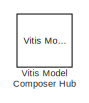
[diagram: root canvas - part 1/2, top left region]
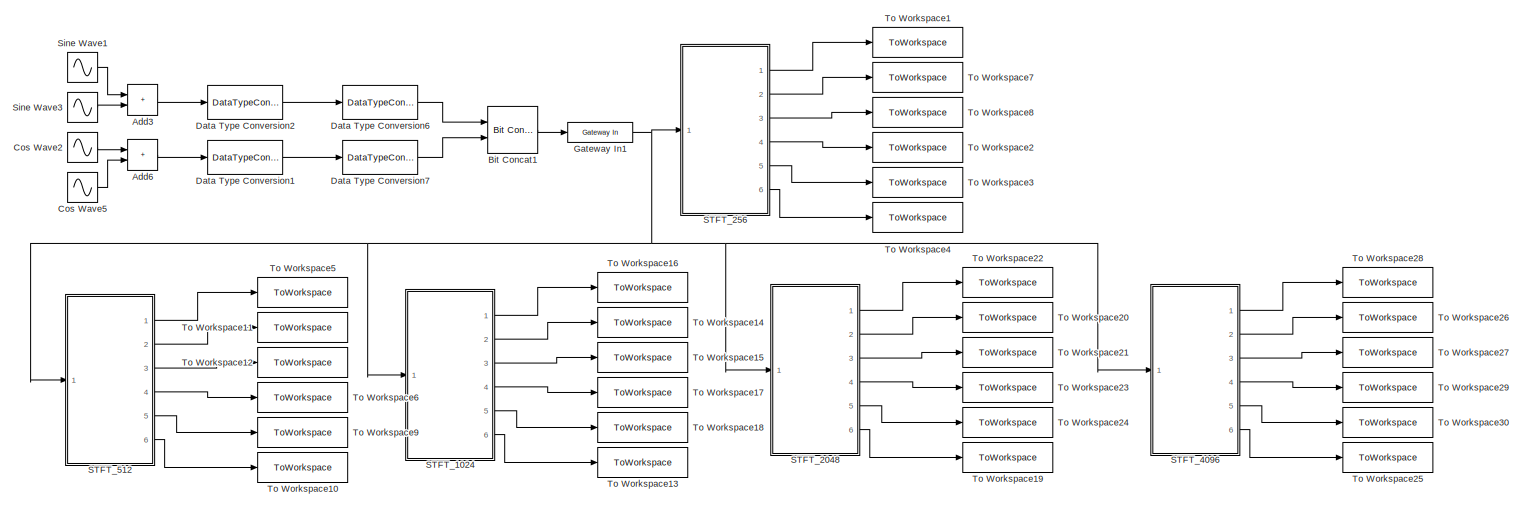
[diagram: root canvas - part 2/2, full width, bottom band]
MODEL slx_c2503fe6d909
KIND model
CONFIG AbsTol = auto
CONFIG EnableMultiTasking = off
CONFIG FixedStep = auto
CONFIG InitFcn = f = 12.288e6;\nfs = 153.6e6;\nN1 = 256;\nN2 = 512;\nN3 = 1024;\nN4 = 2048;\nN5 = 4096;\nn1 = 0:N1-1;\nn2 = 0:N2-1;\nn3 = 0:N3-1;\nn4 = 0:N4-1;\nn5 = 0:N5-1;\nHamming1 = 0.54 - 0.46 * cos(2*pi*n1/N1);\nHamming2 = 0.54 - 0.46 * cos(2*pi*n2/N2);\nHamming3 = 0.54 - 0.46 * cos(2*pi*n3/N3);\nHamming4 = 0.54 - 0.46 * cos(2*pi*n4/N4);\nHamming5 = 0.54 - 0.46 * cos(2*pi*n5/N5);\nHanning1 = 0.5 * (1 + cos(2*pi*n1/N1));\nHann...<+425ch>
CONFIG MaxStep = auto
CONFIG MinStep = auto
CONFIG RelTol = 1e-3
CONFIG SampleTimeConstraint = Unconstrained
CONFIG SolverName = VariableStepAuto
CONFIG StartTime = 0.0
CONFIG StopTime = 2048*15/fs
BLOCK [Sum] Add3
  IconShape = rectangular
  Ports = [2, 1]
BLOCK [Sum] Add6
  IconShape = rectangular
  Ports = [2, 1]
BLOCK [Reference] Bit Concat1  REF=hdlsllib/Logic and Bit
Operations/Bit Concat
  Ports = [2, 1]
  SourceBlock = hdlsllib/Logic and Bit\nOperations/Bit Concat
  SourceProductBaseCode = SL
  SourceType = Bit Concat
BLOCK [Sin] Cos Wave2
  Frequency = f*2*pi
  Phase = pi/2
  Ports = [0, 1]
  SampleTime = 1/fs
BLOCK [Sin] Cos Wave5
  Frequency = f*pi
  Phase = pi/2
  Ports = [0, 1]
  SampleTime = 1/fs
BLOCK [DataTypeConversion] Data Type Conversion1
  OutDataTypeStr = fixdt(1,16,14)
  RndMeth = Floor
BLOCK [DataTypeConversion] Data Type Conversion2
  OutDataTypeStr = fixdt(1,16,14)
  RndMeth = Floor
BLOCK [DataTypeConversion] Data Type Conversion6
  ConvertRealWorld = Stored Integer (SI)
  OutDataTypeStr = uint16
  RndMeth = Floor
  SaturateOnIntegerOverflow = off
BLOCK [DataTypeConversion] Data Type Conversion7
  ConvertRealWorld = Stored Integer (SI)
  OutDataTypeStr = uint16
  RndMeth = Floor
  SaturateOnIntegerOverflow = off
BLOCK [Reference] Gateway In1  REF=hdlBasic/Gateway In
  Ports = [1, 1]
  SourceBlock = hdlBasic/Gateway In
  SourceType = Gateway In Block
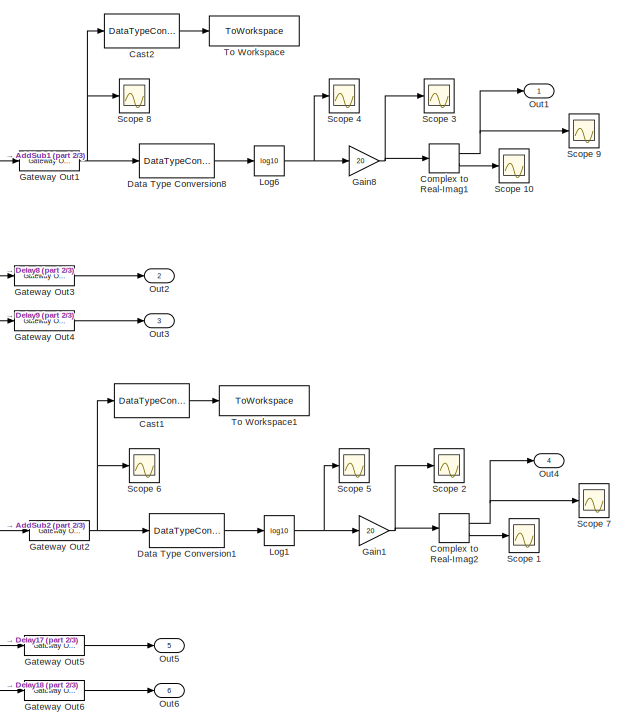
[diagram: STFT_1024 - part 1/3, right side, full height]
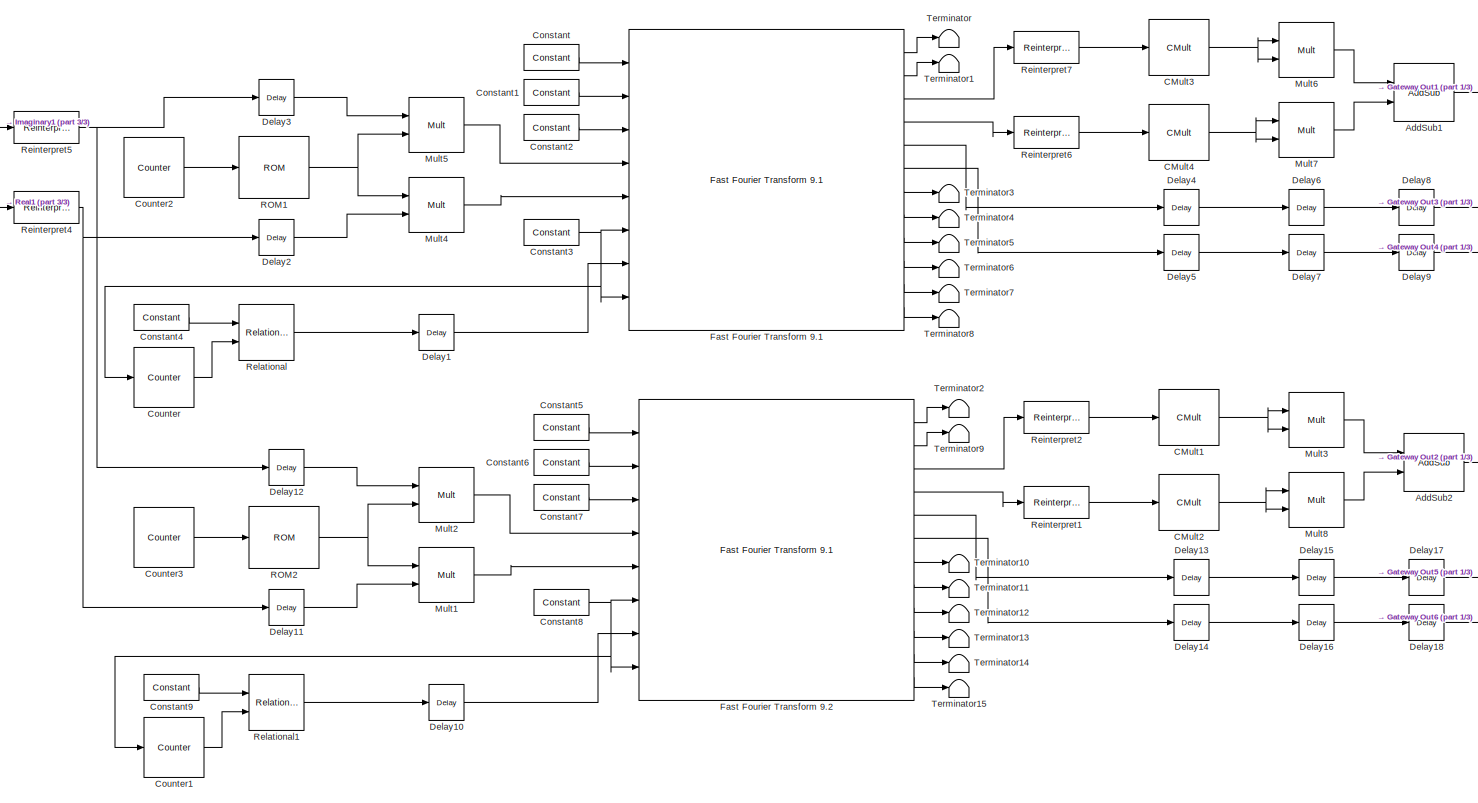
[diagram: STFT_1024 - part 2/3, center side, full height]
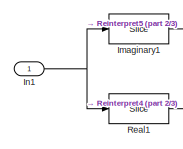
[diagram: STFT_1024 - part 3/3, top left region]
BLOCK [SubSystem] STFT_1024
  Ports = [1, 6]
  RequestExecContextInheritance = off
BLOCK [Reference] STFT_1024/AddSub1  REF=hdlBasic/AddSub
  Ports = [2, 1]
  SourceBlock = hdlBasic/AddSub
  SourceType = Adder/Subtracter Block
BLOCK [Reference] STFT_1024/AddSub2  REF=hdlBasic/AddSub
  Ports = [2, 1]
  SourceBlock = hdlBasic/AddSub
  SourceType = Adder/Subtracter Block
BLOCK [Reference] STFT_1024/CMult1  REF=hdlBasic/CMult
  Commented = through
  Ports = [1, 1]
  SourceBlock = hdlBasic/CMult
  SourceType = Constant Multiplier Block
BLOCK [Reference] STFT_1024/CMult2  REF=hdlBasic/CMult
  Commented = through
  Ports = [1, 1]
  SourceBlock = hdlBasic/CMult
  SourceType = Constant Multiplier Block
BLOCK [Reference] STFT_1024/CMult3  REF=hdlBasic/CMult
  Commented = through
  Ports = [1, 1]
  SourceBlock = hdlBasic/CMult
  SourceType = Constant Multiplier Block
BLOCK [Reference] STFT_1024/CMult4  REF=hdlBasic/CMult
  Commented = through
  Ports = [1, 1]
  SourceBlock = hdlBasic/CMult
  SourceType = Constant Multiplier Block
BLOCK [DataTypeConversion] STFT_1024/Cast1
  Commented = on
  OutDataTypeStr = double
  RndMeth = Floor
  SaturateOnIntegerOverflow = off
BLOCK [DataTypeConversion] STFT_1024/Cast2
  Commented = on
  OutDataTypeStr = double
  RndMeth = Floor
  SaturateOnIntegerOverflow = off
BLOCK [ComplexToRealImag] STFT_1024/Complex to Real-Imag1
  Ports = [1, 2]
BLOCK [ComplexToRealImag] STFT_1024/Complex to Real-Imag2
  Ports = [1, 2]
BLOCK [Reference] STFT_1024/Constant  REF=hdlBasic/Constant
  Ports = [0, 1]
  SourceBlock = hdlBasic/Constant
  SourceType = Constant Block Block
BLOCK [Reference] STFT_1024/Constant1  REF=hdlBasic/Constant
  Ports = [0, 1]
  SourceBlock = hdlBasic/Constant
  SourceType = Constant Block Block
BLOCK [Reference] STFT_1024/Constant2  REF=hdlBasic/Constant
  Ports = [0, 1]
  SourceBlock = hdlBasic/Constant
  SourceType = Constant Block Block
BLOCK [Reference] STFT_1024/Constant3  REF=hdlBasic/Constant
  Ports = [0, 1]
  SourceBlock = hdlBasic/Constant
  SourceType = Constant Block Block
BLOCK [Reference] STFT_1024/Constant4  REF=hdlBasic/Constant
  Ports = [0, 1]
  SourceBlock = hdlBasic/Constant
  SourceType = Constant Block Block
BLOCK [Reference] STFT_1024/Constant5  REF=hdlBasic/Constant
  Ports = [0, 1]
  SourceBlock = hdlBasic/Constant
  SourceType = Constant Block Block
BLOCK [Reference] STFT_1024/Constant6  REF=hdlBasic/Constant
  Ports = [0, 1]
  SourceBlock = hdlBasic/Constant
  SourceType = Constant Block Block
BLOCK [Reference] STFT_1024/Constant7  REF=hdlBasic/Constant
  Ports = [0, 1]
  SourceBlock = hdlBasic/Constant
  SourceType = Constant Block Block
BLOCK [Reference] STFT_1024/Constant8  REF=hdlBasic/Constant
  Ports = [0, 1]
  SourceBlock = hdlBasic/Constant
  SourceType = Constant Block Block
BLOCK [Reference] STFT_1024/Constant9  REF=hdlBasic/Constant
  Ports = [0, 1]
  SourceBlock = hdlBasic/Constant
  SourceType = Constant Block Block
BLOCK [Reference] STFT_1024/Counter  REF=hdlBasic/Counter
  Ports = [1, 1]
  SourceBlock = hdlBasic/Counter
  SourceType = Counter Block
BLOCK [Reference] STFT_1024/Counter1  REF=hdlBasic/Counter
  Ports = [1, 1]
  SourceBlock = hdlBasic/Counter
  SourceType = Counter Block
BLOCK [Reference] STFT_1024/Counter2  REF=hdlBasic/Counter
  Ports = [0, 1]
  SourceBlock = hdlBasic/Counter
  SourceType = Counter Block
BLOCK [Reference] STFT_1024/Counter3  REF=hdlBasic/Counter
  Ports = [0, 1]
  SourceBlock = hdlBasic/Counter
  SourceType = Counter Block
BLOCK [DataTypeConversion] STFT_1024/Data Type Conversion1
  OutDataTypeStr = double
  RndMeth = Floor
BLOCK [DataTypeConversion] STFT_1024/Data Type Conversion8
  OutDataTypeStr = double
  RndMeth = Floor
BLOCK [Reference] STFT_1024/Delay1  REF=hdlBasic/Delay
  Ports = [1, 1]
  SourceBlock = hdlBasic/Delay
  SourceType = Delay Block
BLOCK [Reference] STFT_1024/Delay10  REF=hdlBasic/Delay
  Ports = [1, 1]
  SourceBlock = hdlBasic/Delay
  SourceType = Delay Block
BLOCK [Reference] STFT_1024/Delay11  REF=hdlBasic/Delay
  Ports = [1, 1]
  SourceBlock = hdlBasic/Delay
  SourceType = Delay Block
BLOCK [Reference] STFT_1024/Delay12  REF=hdlBasic/Delay
  NameLocation = top
  Ports = [1, 1]
  SourceBlock = hdlBasic/Delay
  SourceType = Delay Block
BLOCK [Reference] STFT_1024/Delay13  REF=hdlBasic/Delay
  Commented = through
  Ports = [1, 1]
  SourceBlock = hdlBasic/Delay
  SourceType = Delay Block
BLOCK [Reference] STFT_1024/Delay14  REF=hdlBasic/Delay
  Commented = through
  Ports = [1, 1]
  SourceBlock = hdlBasic/Delay
  SourceType = Delay Block
BLOCK [Reference] STFT_1024/Delay15  REF=hdlBasic/Delay
  Ports = [1, 1]
  SourceBlock = hdlBasic/Delay
  SourceType = Delay Block
BLOCK [Reference] STFT_1024/Delay16  REF=hdlBasic/Delay
  Ports = [1, 1]
  SourceBlock = hdlBasic/Delay
  SourceType = Delay Block
BLOCK [Reference] STFT_1024/Delay17  REF=hdlBasic/Delay
  Ports = [1, 1]
  SourceBlock = hdlBasic/Delay
  SourceType = Delay Block
BLOCK [Reference] STFT_1024/Delay18  REF=hdlBasic/Delay
  Ports = [1, 1]
  SourceBlock = hdlBasic/Delay
  SourceType = Delay Block
BLOCK [Reference] STFT_1024/Delay2  REF=hdlBasic/Delay
  Ports = [1, 1]
  SourceBlock = hdlBasic/Delay
  SourceType = Delay Block
BLOCK [Reference] STFT_1024/Delay3  REF=hdlBasic/Delay
  NameLocation = top
  Ports = [1, 1]
  SourceBlock = hdlBasic/Delay
  SourceType = Delay Block
BLOCK [Reference] STFT_1024/Delay4  REF=hdlBasic/Delay
  Commented = through
  Ports = [1, 1]
  SourceBlock = hdlBasic/Delay
  SourceType = Delay Block
BLOCK [Reference] STFT_1024/Delay5  REF=hdlBasic/Delay
  Commented = through
  Ports = [1, 1]
  SourceBlock = hdlBasic/Delay
  SourceType = Delay Block
BLOCK [Reference] STFT_1024/Delay6  REF=hdlBasic/Delay
  Ports = [1, 1]
  SourceBlock = hdlBasic/Delay
  SourceType = Delay Block
BLOCK [Reference] STFT_1024/Delay7  REF=hdlBasic/Delay
  Ports = [1, 1]
  SourceBlock = hdlBasic/Delay
  SourceType = Delay Block
BLOCK [Reference] STFT_1024/Delay8  REF=hdlBasic/Delay
  Ports = [1, 1]
  SourceBlock = hdlBasic/Delay
  SourceType = Delay Block
BLOCK [Reference] STFT_1024/Delay9  REF=hdlBasic/Delay
  Ports = [1, 1]
  SourceBlock = hdlBasic/Delay
  SourceType = Delay Block
BLOCK [Reference] STFT_1024/Fast Fourier Transform 9.1  REF=hdlDSPIP/Fast Fourier Transform 9.1 
  Ports = [8, 12]
  SourceBlock = hdlDSPIP/Fast Fourier Transform 9.1
  SourceType = Fast Fourier Transform 9.1  Block
BLOCK [Reference] STFT_1024/Fast Fourier Transform 9.2  REF=hdlDSPIP/Fast Fourier Transform 9.1 
  Ports = [8, 12]
  SourceBlock = hdlDSPIP/Fast Fourier Transform 9.1
  SourceType = Fast Fourier Transform 9.1  Block
BLOCK [Gain] STFT_1024/Gain1
  Gain = 20
BLOCK [Gain] STFT_1024/Gain8
  Gain = 20
BLOCK [Reference] STFT_1024/Gateway Out1  REF=hdlBasic/Gateway Out
  Ports = [1, 1]
  SourceBlock = hdlBasic/Gateway Out
  SourceType = Gateway Out Block
BLOCK [Reference] STFT_1024/Gateway Out2  REF=hdlBasic/Gateway Out
  Ports = [1, 1]
  SourceBlock = hdlBasic/Gateway Out
  SourceType = Gateway Out Block
BLOCK [Reference] STFT_1024/Gateway Out3  REF=hdlBasic/Gateway Out
  Ports = [1, 1]
  SourceBlock = hdlBasic/Gateway Out
  SourceType = Gateway Out Block
BLOCK [Reference] STFT_1024/Gateway Out4  REF=hdlBasic/Gateway Out
  Ports = [1, 1]
  SourceBlock = hdlBasic/Gateway Out
  SourceType = Gateway Out Block
BLOCK [Reference] STFT_1024/Gateway Out5  REF=hdlBasic/Gateway Out
  Ports = [1, 1]
  SourceBlock = hdlBasic/Gateway Out
  SourceType = Gateway Out Block
BLOCK [Reference] STFT_1024/Gateway Out6  REF=hdlBasic/Gateway Out
  Ports = [1, 1]
  SourceBlock = hdlBasic/Gateway Out
  SourceType = Gateway Out Block
BLOCK [Reference] STFT_1024/Imaginary1  REF=hdlBasic/Slice
  Ports = [1, 1]
  SourceBlock = hdlBasic/Slice
  SourceType = Bit Slice Extractor Block
BLOCK [Inport] STFT_1024/In1
BLOCK [Math] STFT_1024/Log1
  Operator = log10
  OutputSignalType = complex
  Ports = [1, 1]
BLOCK [Math] STFT_1024/Log6
  Operator = log10
  OutputSignalType = complex
  Ports = [1, 1]
BLOCK [Reference] STFT_1024/Mult1  REF=hdlBasic/Mult
  Ports = [2, 1]
  SourceBlock = hdlBasic/Mult
  SourceType = Multiplier Block
BLOCK [Reference] STFT_1024/Mult2  REF=hdlBasic/Mult
  Ports = [2, 1]
  SourceBlock = hdlBasic/Mult
  SourceType = Multiplier Block
BLOCK [Reference] STFT_1024/Mult3  REF=hdlBasic/Mult
  Ports = [2, 1]
  SourceBlock = hdlBasic/Mult
  SourceType = Multiplier Block
BLOCK [Reference] STFT_1024/Mult4  REF=hdlBasic/Mult
  Ports = [2, 1]
  SourceBlock = hdlBasic/Mult
  SourceType = Multiplier Block
BLOCK [Reference] STFT_1024/Mult5  REF=hdlBasic/Mult
  Ports = [2, 1]
  SourceBlock = hdlBasic/Mult
  SourceType = Multiplier Block
BLOCK [Reference] STFT_1024/Mult6  REF=hdlBasic/Mult
  Ports = [2, 1]
  SourceBlock = hdlBasic/Mult
  SourceType = Multiplier Block
BLOCK [Reference] STFT_1024/Mult7  REF=hdlBasic/Mult
  Ports = [2, 1]
  SourceBlock = hdlBasic/Mult
  SourceType = Multiplier Block
BLOCK [Reference] STFT_1024/Mult8  REF=hdlBasic/Mult
  Ports = [2, 1]
  SourceBlock = hdlBasic/Mult
  SourceType = Multiplier Block
BLOCK [Outport] STFT_1024/Out1
BLOCK [Outport] STFT_1024/Out2
  Port = 2
BLOCK [Outport] STFT_1024/Out3
  Port = 3
BLOCK [Outport] STFT_1024/Out4
  Port = 4
BLOCK [Outport] STFT_1024/Out5
  Port = 5
BLOCK [Outport] STFT_1024/Out6
  Port = 6
BLOCK [Reference] STFT_1024/ROM1  REF=hdlBasic/ROM
  Ports = [1, 1]
  SourceBlock = hdlBasic/ROM
  SourceType = Single Port Read-Only Memory Block
BLOCK [Reference] STFT_1024/ROM2  REF=hdlBasic/ROM
  Ports = [1, 1]
  SourceBlock = hdlBasic/ROM
  SourceType = Single Port Read-Only Memory Block
BLOCK [Reference] STFT_1024/Real1  REF=hdlBasic/Slice
  Ports = [1, 1]
  SourceBlock = hdlBasic/Slice
  SourceType = Bit Slice Extractor Block
BLOCK [Reference] STFT_1024/Reinterpret1  REF=hdlBasic/Reinterpret
  Ports = [1, 1]
  SourceBlock = hdlBasic/Reinterpret
  SourceType = Type Reinterpreter Block
BLOCK [Reference] STFT_1024/Reinterpret2  REF=hdlBasic/Reinterpret
  Ports = [1, 1]
  SourceBlock = hdlBasic/Reinterpret
  SourceType = Type Reinterpreter Block
BLOCK [Reference] STFT_1024/Reinterpret4  REF=hdlBasic/Reinterpret
  Ports = [1, 1]
  SourceBlock = hdlBasic/Reinterpret
  SourceType = Type Reinterpreter Block
BLOCK [Reference] STFT_1024/Reinterpret5  REF=hdlBasic/Reinterpret
  Ports = [1, 1]
  SourceBlock = hdlBasic/Reinterpret
  SourceType = Type Reinterpreter Block
BLOCK [Reference] STFT_1024/Reinterpret6  REF=hdlBasic/Reinterpret
  Ports = [1, 1]
  SourceBlock = hdlBasic/Reinterpret
  SourceType = Type Reinterpreter Block
BLOCK [Reference] STFT_1024/Reinterpret7  REF=hdlBasic/Reinterpret
  Ports = [1, 1]
  SourceBlock = hdlBasic/Reinterpret
  SourceType = Type Reinterpreter Block
BLOCK [Reference] STFT_1024/Relational  REF=hdlBasic/Relational
  Ports = [2, 1]
  SourceBlock = hdlBasic/Relational
  SourceType = Arithmetic Relational Operator Block
BLOCK [Reference] STFT_1024/Relational1  REF=hdlBasic/Relational
  Ports = [2, 1]
  SourceBlock = hdlBasic/Relational
  SourceType = Arithmetic Relational Operator Block
BLOCK [Scope] STFT_1024/Scope 1
  Commented = on
  Floating = off
  NumInputPorts = 1
  Ports = [1]
  ScopeSpecificationString = Simulink.scopes.TimeScopeBlockCfg('CurrentConfiguration', extmgr.ConfigurationSet(extmgr.Configuration('Core','General UI',true),extmgr.Configuration('Core','Source UI',true),extmgr.Configuration('Sources','WiredSimulink',true,'DataLoggingVariableName','ScopeData4'),extmgr.Configuration('Visuals','Time Domain',true,'SerializedDisplays',{struct('MinYLimReal','-1.00000','MaxYLimReal','1.00000','YLab...<+1624ch>  <repeated x10 — deduplicated; at blocks: Scope 1, Scope 10>
BLOCK [Scope] STFT_1024/Scope 10
  Commented = on
  Floating = off
  NumInputPorts = 1
  Ports = [1]
BLOCK [Scope] STFT_1024/Scope 2
  Commented = on
  Floating = off
  NumInputPorts = 1
  Ports = [1]
  ScopeSpecificationString = Simulink.scopes.TimeScopeBlockCfg('CurrentConfiguration', extmgr.ConfigurationSet(extmgr.Configuration('Core','General UI',true),extmgr.Configuration('Core','Source UI',true),extmgr.Configuration('Sources','WiredSimulink',true,'DataLoggingVariableName','ScopeData6'),extmgr.Configuration('Visuals','Time Domain',true,'SerializedDisplays',{struct('MinYLimReal','-203.19525','MaxYLimReal','22.57725','Y...<+1637ch>  <repeated x10 — deduplicated; at blocks: Scope 2, Scope 3>
BLOCK [Scope] STFT_1024/Scope 3
  Commented = on
  Floating = off
  NumInputPorts = 1
  Ports = [1]
BLOCK [Scope] STFT_1024/Scope 4
  Commented = on
  Floating = off
  NumInputPorts = 1
  Ports = [1]
  ScopeSpecificationString = Simulink.scopes.TimeScopeBlockCfg('CurrentConfiguration', extmgr.ConfigurationSet(extmgr.Configuration('Core','General UI',true),extmgr.Configuration('Core','Source UI',true),extmgr.Configuration('Sources','WiredSimulink',true,'DataLoggingVariableName','ScopeData1'),extmgr.Configuration('Visuals','Time Domain',true,'SerializedDisplays',{struct('MinYLimReal','-10.15976','MaxYLimReal','1.12886','YLa...<+1628ch>  <repeated x10 — deduplicated; at blocks: Scope 4, Scope 5>
BLOCK [Scope] STFT_1024/Scope 5
  Commented = on
  Floating = off
  NumInputPorts = 1
  Ports = [1]
BLOCK [Scope] STFT_1024/Scope 6
  Commented = on
  Floating = off
  NumInputPorts = 1
  Ports = [1]
  ScopeSpecificationString = Simulink.scopes.TimeScopeBlockCfg('CurrentConfiguration', extmgr.ConfigurationSet(extmgr.Configuration('Core','General UI',true),extmgr.Configuration('Core','Source UI',true),extmgr.Configuration('Sources','WiredSimulink',true),extmgr.Configuration('Visuals','Time Domain',true,'SerializedDisplays',{struct('MinYLimReal','-0.00000002','MaxYLimReal','0.00000019','YLabelReal','','MinYLimMag','0.000000...<+1478ch>  <repeated x10 — deduplicated; at blocks: Scope 6, Scope 8>
BLOCK [Scope] STFT_1024/Scope 7
  Commented = on
  Floating = off
  NumInputPorts = 1
  Ports = [1]
  ScopeSpecificationString = Simulink.scopes.TimeScopeBlockCfg('CurrentConfiguration', extmgr.ConfigurationSet(extmgr.Configuration('Core','General UI',true),extmgr.Configuration('Core','Source UI',true),extmgr.Configuration('Sources','WiredSimulink',true,'DataLoggingVariableName','ScopeData3'),extmgr.Configuration('Visuals','Time Domain',true,'SerializedDisplays',{struct('MinYLimReal','-201.4793','MaxYLimReal','7.13376','YLa...<+1631ch>  <repeated x10 — deduplicated; at blocks: Scope 7, Scope 9>
BLOCK [Scope] STFT_1024/Scope 8
  Commented = on
  Floating = off
  NumInputPorts = 1
  Ports = [1]
BLOCK [Scope] STFT_1024/Scope 9
  Commented = on
  Floating = off
  NumInputPorts = 1
  Ports = [1]
BLOCK [Terminator] STFT_1024/Terminator
BLOCK [Terminator] STFT_1024/Terminator1
BLOCK [Terminator] STFT_1024/Terminator10
BLOCK [Terminator] STFT_1024/Terminator11
BLOCK [Terminator] STFT_1024/Terminator12
BLOCK [Terminator] STFT_1024/Terminator13
BLOCK [Terminator] STFT_1024/Terminator14
BLOCK [Terminator] STFT_1024/Terminator15
BLOCK [Terminator] STFT_1024/Terminator2
BLOCK [Terminator] STFT_1024/Terminator3
BLOCK [Terminator] STFT_1024/Terminator4
BLOCK [Terminator] STFT_1024/Terminator5
BLOCK [Terminator] STFT_1024/Terminator6
BLOCK [Terminator] STFT_1024/Terminator7
BLOCK [Terminator] STFT_1024/Terminator8
BLOCK [Terminator] STFT_1024/Terminator9
BLOCK [ToWorkspace] STFT_1024/To Workspace
  Commented = on
  FixptAsFi = on
  MaxDataPoints = inf
  Ports = [1]
  SampleTime = -1
  Save2DSignal = 2-D array (concatenate along first dimension)
  VariableName = FFT_out_abs_ham
BLOCK [ToWorkspace] STFT_1024/To Workspace1
  Commented = on
  FixptAsFi = on
  MaxDataPoints = inf
  Ports = [1]
  SampleTime = -1
  Save2DSignal = 2-D array (concatenate along first dimension)
  VariableName = FFT_out_abs_han
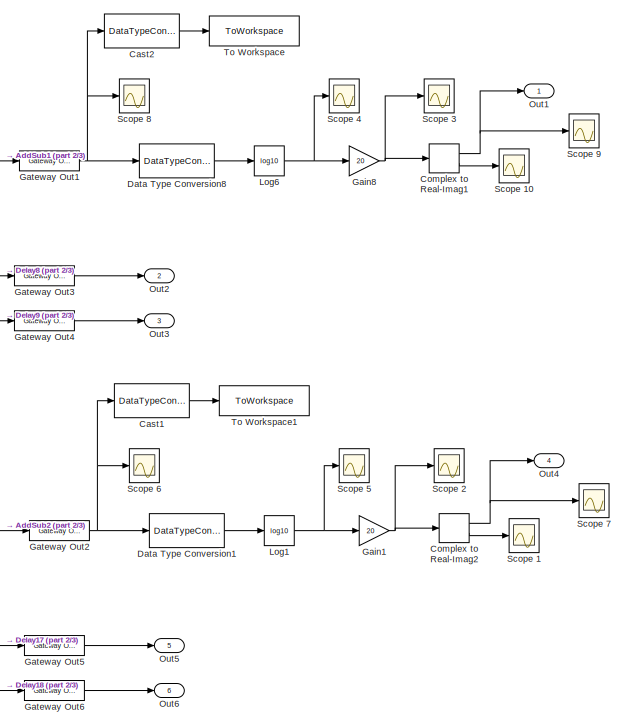
[diagram: STFT_2048 - part 1/3, right side, full height]
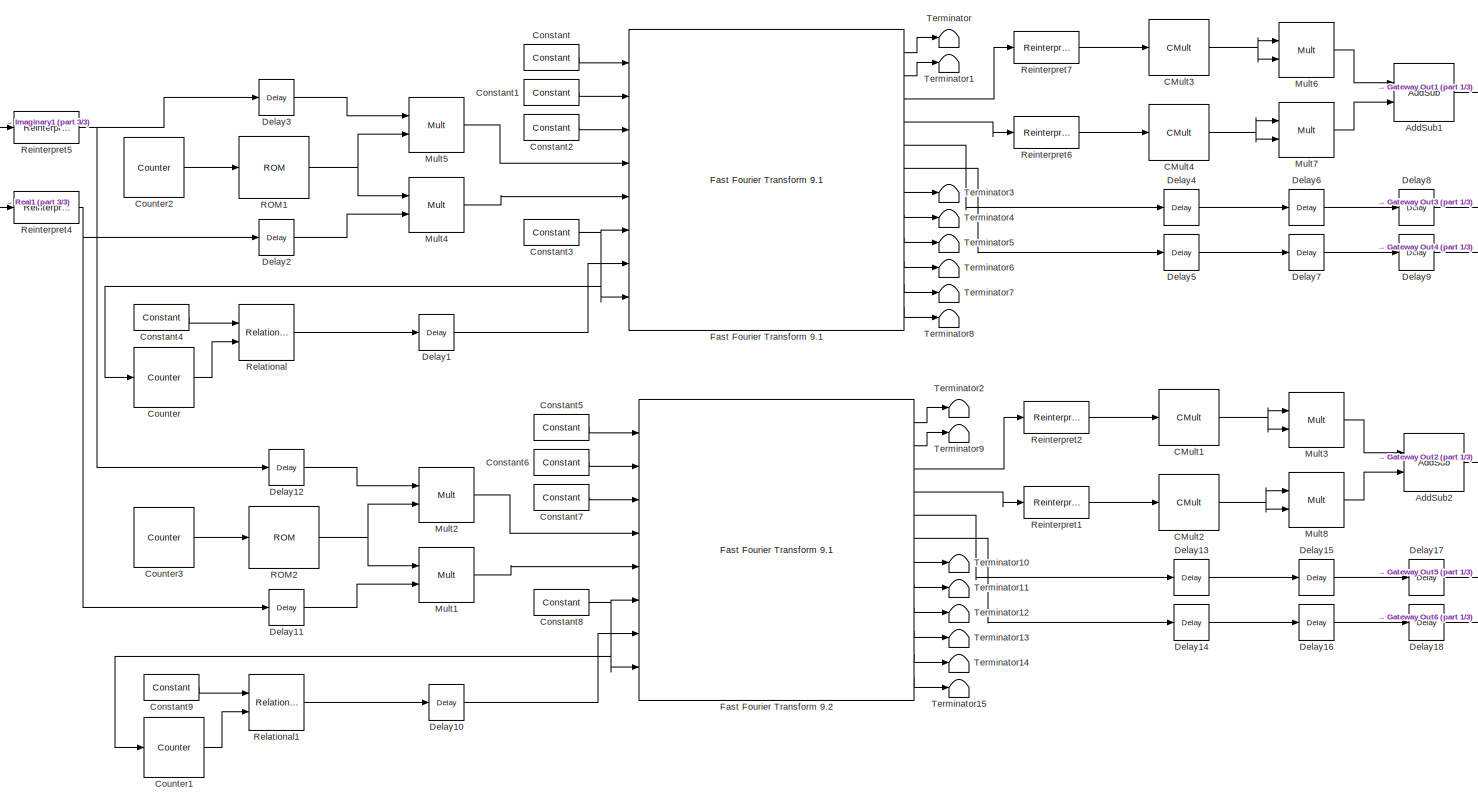
[diagram: STFT_2048 - part 2/3, center side, full height]
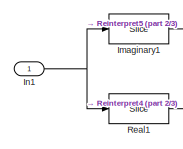
[diagram: STFT_2048 - part 3/3, top left region]
BLOCK [SubSystem] STFT_2048
  Ports = [1, 6]
  RequestExecContextInheritance = off
BLOCK [Reference] STFT_2048/AddSub1  REF=hdlBasic/AddSub
  Ports = [2, 1]
  SourceBlock = hdlBasic/AddSub
  SourceType = Adder/Subtracter Block
BLOCK [Reference] STFT_2048/AddSub2  REF=hdlBasic/AddSub
  Ports = [2, 1]
  SourceBlock = hdlBasic/AddSub
  SourceType = Adder/Subtracter Block
BLOCK [Reference] STFT_2048/CMult1  REF=hdlBasic/CMult
  Commented = through
  Ports = [1, 1]
  SourceBlock = hdlBasic/CMult
  SourceType = Constant Multiplier Block
BLOCK [Reference] STFT_2048/CMult2  REF=hdlBasic/CMult
  Commented = through
  Ports = [1, 1]
  SourceBlock = hdlBasic/CMult
  SourceType = Constant Multiplier Block
BLOCK [Reference] STFT_2048/CMult3  REF=hdlBasic/CMult
  Commented = through
  Ports = [1, 1]
  SourceBlock = hdlBasic/CMult
  SourceType = Constant Multiplier Block
BLOCK [Reference] STFT_2048/CMult4  REF=hdlBasic/CMult
  Commented = through
  Ports = [1, 1]
  SourceBlock = hdlBasic/CMult
  SourceType = Constant Multiplier Block
BLOCK [DataTypeConversion] STFT_2048/Cast1
  Commented = on
  OutDataTypeStr = double
  RndMeth = Floor
  SaturateOnIntegerOverflow = off
BLOCK [DataTypeConversion] STFT_2048/Cast2
  Commented = on
  OutDataTypeStr = double
  RndMeth = Floor
  SaturateOnIntegerOverflow = off
BLOCK [ComplexToRealImag] STFT_2048/Complex to Real-Imag1
  Ports = [1, 2]
BLOCK [ComplexToRealImag] STFT_2048/Complex to Real-Imag2
  Ports = [1, 2]
BLOCK [Reference] STFT_2048/Constant  REF=hdlBasic/Constant
  Ports = [0, 1]
  SourceBlock = hdlBasic/Constant
  SourceType = Constant Block Block
BLOCK [Reference] STFT_2048/Constant1  REF=hdlBasic/Constant
  Ports = [0, 1]
  SourceBlock = hdlBasic/Constant
  SourceType = Constant Block Block
BLOCK [Reference] STFT_2048/Constant2  REF=hdlBasic/Constant
  Ports = [0, 1]
  SourceBlock = hdlBasic/Constant
  SourceType = Constant Block Block
BLOCK [Reference] STFT_2048/Constant3  REF=hdlBasic/Constant
  Ports = [0, 1]
  SourceBlock = hdlBasic/Constant
  SourceType = Constant Block Block
BLOCK [Reference] STFT_2048/Constant4  REF=hdlBasic/Constant
  Ports = [0, 1]
  SourceBlock = hdlBasic/Constant
  SourceType = Constant Block Block
BLOCK [Reference] STFT_2048/Constant5  REF=hdlBasic/Constant
  Ports = [0, 1]
  SourceBlock = hdlBasic/Constant
  SourceType = Constant Block Block
BLOCK [Reference] STFT_2048/Constant6  REF=hdlBasic/Constant
  Ports = [0, 1]
  SourceBlock = hdlBasic/Constant
  SourceType = Constant Block Block
BLOCK [Reference] STFT_2048/Constant7  REF=hdlBasic/Constant
  Ports = [0, 1]
  SourceBlock = hdlBasic/Constant
  SourceType = Constant Block Block
BLOCK [Reference] STFT_2048/Constant8  REF=hdlBasic/Constant
  Ports = [0, 1]
  SourceBlock = hdlBasic/Constant
  SourceType = Constant Block Block
BLOCK [Reference] STFT_2048/Constant9  REF=hdlBasic/Constant
  Ports = [0, 1]
  SourceBlock = hdlBasic/Constant
  SourceType = Constant Block Block
BLOCK [Reference] STFT_2048/Counter  REF=hdlBasic/Counter
  Ports = [1, 1]
  SourceBlock = hdlBasic/Counter
  SourceType = Counter Block
BLOCK [Reference] STFT_2048/Counter1  REF=hdlBasic/Counter
  Ports = [1, 1]
  SourceBlock = hdlBasic/Counter
  SourceType = Counter Block
BLOCK [Reference] STFT_2048/Counter2  REF=hdlBasic/Counter
  Ports = [0, 1]
  SourceBlock = hdlBasic/Counter
  SourceType = Counter Block
BLOCK [Reference] STFT_2048/Counter3  REF=hdlBasic/Counter
  Ports = [0, 1]
  SourceBlock = hdlBasic/Counter
  SourceType = Counter Block
BLOCK [DataTypeConversion] STFT_2048/Data Type Conversion1
  OutDataTypeStr = double
  RndMeth = Floor
BLOCK [DataTypeConversion] STFT_2048/Data Type Conversion8
  OutDataTypeStr = double
  RndMeth = Floor
BLOCK [Reference] STFT_2048/Delay1  REF=hdlBasic/Delay
  Ports = [1, 1]
  SourceBlock = hdlBasic/Delay
  SourceType = Delay Block
BLOCK [Reference] STFT_2048/Delay10  REF=hdlBasic/Delay
  Ports = [1, 1]
  SourceBlock = hdlBasic/Delay
  SourceType = Delay Block
BLOCK [Reference] STFT_2048/Delay11  REF=hdlBasic/Delay
  Ports = [1, 1]
  SourceBlock = hdlBasic/Delay
  SourceType = Delay Block
BLOCK [Reference] STFT_2048/Delay12  REF=hdlBasic/Delay
  NameLocation = top
  Ports = [1, 1]
  SourceBlock = hdlBasic/Delay
  SourceType = Delay Block
BLOCK [Reference] STFT_2048/Delay13  REF=hdlBasic/Delay
  Commented = through
  Ports = [1, 1]
  SourceBlock = hdlBasic/Delay
  SourceType = Delay Block
BLOCK [Reference] STFT_2048/Delay14  REF=hdlBasic/Delay
  Commented = through
  Ports = [1, 1]
  SourceBlock = hdlBasic/Delay
  SourceType = Delay Block
BLOCK [Reference] STFT_2048/Delay15  REF=hdlBasic/Delay
  Ports = [1, 1]
  SourceBlock = hdlBasic/Delay
  SourceType = Delay Block
BLOCK [Reference] STFT_2048/Delay16  REF=hdlBasic/Delay
  Ports = [1, 1]
  SourceBlock = hdlBasic/Delay
  SourceType = Delay Block
BLOCK [Reference] STFT_2048/Delay17  REF=hdlBasic/Delay
  Ports = [1, 1]
  SourceBlock = hdlBasic/Delay
  SourceType = Delay Block
BLOCK [Reference] STFT_2048/Delay18  REF=hdlBasic/Delay
  Ports = [1, 1]
  SourceBlock = hdlBasic/Delay
  SourceType = Delay Block
BLOCK [Reference] STFT_2048/Delay2  REF=hdlBasic/Delay
  Ports = [1, 1]
  SourceBlock = hdlBasic/Delay
  SourceType = Delay Block
BLOCK [Reference] STFT_2048/Delay3  REF=hdlBasic/Delay
  NameLocation = top
  Ports = [1, 1]
  SourceBlock = hdlBasic/Delay
  SourceType = Delay Block
BLOCK [Reference] STFT_2048/Delay4  REF=hdlBasic/Delay
  Commented = through
  Ports = [1, 1]
  SourceBlock = hdlBasic/Delay
  SourceType = Delay Block
BLOCK [Reference] STFT_2048/Delay5  REF=hdlBasic/Delay
  Commented = through
  Ports = [1, 1]
  SourceBlock = hdlBasic/Delay
  SourceType = Delay Block
BLOCK [Reference] STFT_2048/Delay6  REF=hdlBasic/Delay
  Ports = [1, 1]
  SourceBlock = hdlBasic/Delay
  SourceType = Delay Block
BLOCK [Reference] STFT_2048/Delay7  REF=hdlBasic/Delay
  Ports = [1, 1]
  SourceBlock = hdlBasic/Delay
  SourceType = Delay Block
BLOCK [Reference] STFT_2048/Delay8  REF=hdlBasic/Delay
  Ports = [1, 1]
  SourceBlock = hdlBasic/Delay
  SourceType = Delay Block
BLOCK [Reference] STFT_2048/Delay9  REF=hdlBasic/Delay
  Ports = [1, 1]
  SourceBlock = hdlBasic/Delay
  SourceType = Delay Block
BLOCK [Reference] STFT_2048/Fast Fourier Transform 9.1  REF=hdlDSPIP/Fast Fourier Transform 9.1 
  Ports = [8, 12]
  SourceBlock = hdlDSPIP/Fast Fourier Transform 9.1
  SourceType = Fast Fourier Transform 9.1  Block
BLOCK [Reference] STFT_2048/Fast Fourier Transform 9.2  REF=hdlDSPIP/Fast Fourier Transform 9.1 
  Ports = [8, 12]
  SourceBlock = hdlDSPIP/Fast Fourier Transform 9.1
  SourceType = Fast Fourier Transform 9.1  Block
BLOCK [Gain] STFT_2048/Gain1
  Gain = 20
BLOCK [Gain] STFT_2048/Gain8
  Gain = 20
BLOCK [Reference] STFT_2048/Gateway Out1  REF=hdlBasic/Gateway Out
  Ports = [1, 1]
  SourceBlock = hdlBasic/Gateway Out
  SourceType = Gateway Out Block
BLOCK [Reference] STFT_2048/Gateway Out2  REF=hdlBasic/Gateway Out
  Ports = [1, 1]
  SourceBlock = hdlBasic/Gateway Out
  SourceType = Gateway Out Block
BLOCK [Reference] STFT_2048/Gateway Out3  REF=hdlBasic/Gateway Out
  Ports = [1, 1]
  SourceBlock = hdlBasic/Gateway Out
  SourceType = Gateway Out Block
BLOCK [Reference] STFT_2048/Gateway Out4  REF=hdlBasic/Gateway Out
  Ports = [1, 1]
  SourceBlock = hdlBasic/Gateway Out
  SourceType = Gateway Out Block
BLOCK [Reference] STFT_2048/Gateway Out5  REF=hdlBasic/Gateway Out
  Ports = [1, 1]
  SourceBlock = hdlBasic/Gateway Out
  SourceType = Gateway Out Block
BLOCK [Reference] STFT_2048/Gateway Out6  REF=hdlBasic/Gateway Out
  Ports = [1, 1]
  SourceBlock = hdlBasic/Gateway Out
  SourceType = Gateway Out Block
BLOCK [Reference] STFT_2048/Imaginary1  REF=hdlBasic/Slice
  Ports = [1, 1]
  SourceBlock = hdlBasic/Slice
  SourceType = Bit Slice Extractor Block
BLOCK [Inport] STFT_2048/In1
BLOCK [Math] STFT_2048/Log1
  Operator = log10
  OutputSignalType = complex
  Ports = [1, 1]
BLOCK [Math] STFT_2048/Log6
  Operator = log10
  OutputSignalType = complex
  Ports = [1, 1]
BLOCK [Reference] STFT_2048/Mult1  REF=hdlBasic/Mult
  Ports = [2, 1]
  SourceBlock = hdlBasic/Mult
  SourceType = Multiplier Block
BLOCK [Reference] STFT_2048/Mult2  REF=hdlBasic/Mult
  Ports = [2, 1]
  SourceBlock = hdlBasic/Mult
  SourceType = Multiplier Block
BLOCK [Reference] STFT_2048/Mult3  REF=hdlBasic/Mult
  Ports = [2, 1]
  SourceBlock = hdlBasic/Mult
  SourceType = Multiplier Block
BLOCK [Reference] STFT_2048/Mult4  REF=hdlBasic/Mult
  Ports = [2, 1]
  SourceBlock = hdlBasic/Mult
  SourceType = Multiplier Block
BLOCK [Reference] STFT_2048/Mult5  REF=hdlBasic/Mult
  Ports = [2, 1]
  SourceBlock = hdlBasic/Mult
  SourceType = Multiplier Block
BLOCK [Reference] STFT_2048/Mult6  REF=hdlBasic/Mult
  Ports = [2, 1]
  SourceBlock = hdlBasic/Mult
  SourceType = Multiplier Block
BLOCK [Reference] STFT_2048/Mult7  REF=hdlBasic/Mult
  Ports = [2, 1]
  SourceBlock = hdlBasic/Mult
  SourceType = Multiplier Block
BLOCK [Reference] STFT_2048/Mult8  REF=hdlBasic/Mult
  Ports = [2, 1]
  SourceBlock = hdlBasic/Mult
  SourceType = Multiplier Block
BLOCK [Outport] STFT_2048/Out1
BLOCK [Outport] STFT_2048/Out2
  Port = 2
BLOCK [Outport] STFT_2048/Out3
  Port = 3
BLOCK [Outport] STFT_2048/Out4
  Port = 4
BLOCK [Outport] STFT_2048/Out5
  Port = 5
BLOCK [Outport] STFT_2048/Out6
  Port = 6
BLOCK [Reference] STFT_2048/ROM1  REF=hdlBasic/ROM
  Ports = [1, 1]
  SourceBlock = hdlBasic/ROM
  SourceType = Single Port Read-Only Memory Block
BLOCK [Reference] STFT_2048/ROM2  REF=hdlBasic/ROM
  Ports = [1, 1]
  SourceBlock = hdlBasic/ROM
  SourceType = Single Port Read-Only Memory Block
BLOCK [Reference] STFT_2048/Real1  REF=hdlBasic/Slice
  Ports = [1, 1]
  SourceBlock = hdlBasic/Slice
  SourceType = Bit Slice Extractor Block
BLOCK [Reference] STFT_2048/Reinterpret1  REF=hdlBasic/Reinterpret
  Ports = [1, 1]
  SourceBlock = hdlBasic/Reinterpret
  SourceType = Type Reinterpreter Block
BLOCK [Reference] STFT_2048/Reinterpret2  REF=hdlBasic/Reinterpret
  Ports = [1, 1]
  SourceBlock = hdlBasic/Reinterpret
  SourceType = Type Reinterpreter Block
BLOCK [Reference] STFT_2048/Reinterpret4  REF=hdlBasic/Reinterpret
  Ports = [1, 1]
  SourceBlock = hdlBasic/Reinterpret
  SourceType = Type Reinterpreter Block
BLOCK [Reference] STFT_2048/Reinterpret5  REF=hdlBasic/Reinterpret
  Ports = [1, 1]
  SourceBlock = hdlBasic/Reinterpret
  SourceType = Type Reinterpreter Block
BLOCK [Reference] STFT_2048/Reinterpret6  REF=hdlBasic/Reinterpret
  Ports = [1, 1]
  SourceBlock = hdlBasic/Reinterpret
  SourceType = Type Reinterpreter Block
BLOCK [Reference] STFT_2048/Reinterpret7  REF=hdlBasic/Reinterpret
  Ports = [1, 1]
  SourceBlock = hdlBasic/Reinterpret
  SourceType = Type Reinterpreter Block
BLOCK [Reference] STFT_2048/Relational  REF=hdlBasic/Relational
  Ports = [2, 1]
  SourceBlock = hdlBasic/Relational
  SourceType = Arithmetic Relational Operator Block
BLOCK [Reference] STFT_2048/Relational1  REF=hdlBasic/Relational
  Ports = [2, 1]
  SourceBlock = hdlBasic/Relational
  SourceType = Arithmetic Relational Operator Block
BLOCK [Scope] STFT_2048/Scope 1
  Commented = on
  Floating = off
  NumInputPorts = 1
  Ports = [1]
BLOCK [Scope] STFT_2048/Scope 10
  Commented = on
  Floating = off
  NumInputPorts = 1
  Ports = [1]
BLOCK [Scope] STFT_2048/Scope 2
  Commented = on
  Floating = off
  NumInputPorts = 1
  Ports = [1]
BLOCK [Scope] STFT_2048/Scope 3
  Commented = on
  Floating = off
  NumInputPorts = 1
  Ports = [1]
BLOCK [Scope] STFT_2048/Scope 4
  Commented = on
  Floating = off
  NumInputPorts = 1
  Ports = [1]
BLOCK [Scope] STFT_2048/Scope 5
  Commented = on
  Floating = off
  NumInputPorts = 1
  Ports = [1]
BLOCK [Scope] STFT_2048/Scope 6
  Commented = on
  Floating = off
  NumInputPorts = 1
  Ports = [1]
BLOCK [Scope] STFT_2048/Scope 7
  Commented = on
  Floating = off
  NumInputPorts = 1
  Ports = [1]
BLOCK [Scope] STFT_2048/Scope 8
  Commented = on
  Floating = off
  NumInputPorts = 1
  Ports = [1]
BLOCK [Scope] STFT_2048/Scope 9
  Commented = on
  Floating = off
  NumInputPorts = 1
  Ports = [1]
BLOCK [Terminator] STFT_2048/Terminator
BLOCK [Terminator] STFT_2048/Terminator1
BLOCK [Terminator] STFT_2048/Terminator10
BLOCK [Terminator] STFT_2048/Terminator11
BLOCK [Terminator] STFT_2048/Terminator12
BLOCK [Terminator] STFT_2048/Terminator13
BLOCK [Terminator] STFT_2048/Terminator14
BLOCK [Terminator] STFT_2048/Terminator15
BLOCK [Terminator] STFT_2048/Terminator2
BLOCK [Terminator] STFT_2048/Terminator3
BLOCK [Terminator] STFT_2048/Terminator4
BLOCK [Terminator] STFT_2048/Terminator5
BLOCK [Terminator] STFT_2048/Terminator6
BLOCK [Terminator] STFT_2048/Terminator7
BLOCK [Terminator] STFT_2048/Terminator8
BLOCK [Terminator] STFT_2048/Terminator9
BLOCK [ToWorkspace] STFT_2048/To Workspace
  Commented = on
  FixptAsFi = on
  MaxDataPoints = inf
  Ports = [1]
  SampleTime = -1
  Save2DSignal = 2-D array (concatenate along first dimension)
  VariableName = FFT_out_abs_ham
BLOCK [ToWorkspace] STFT_2048/To Workspace1
  Commented = on
  FixptAsFi = on
  MaxDataPoints = inf
  Ports = [1]
  SampleTime = -1
  Save2DSignal = 2-D array (concatenate along first dimension)
  VariableName = FFT_out_abs_han
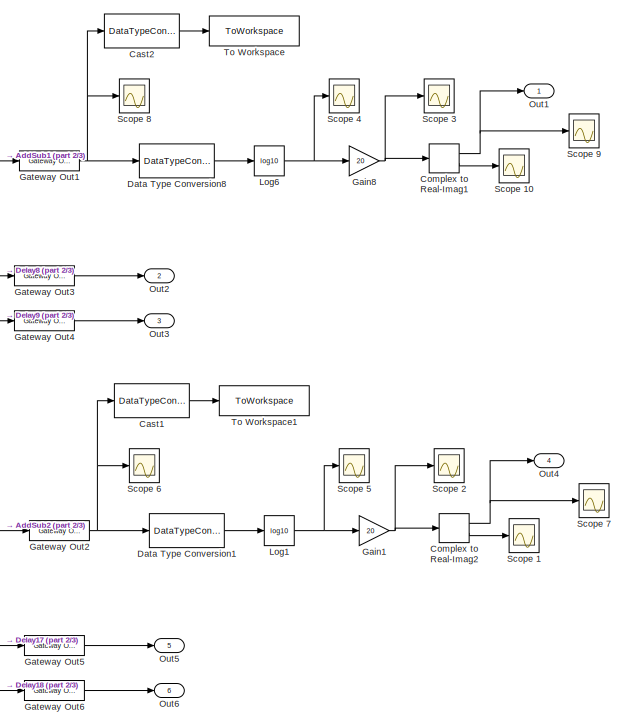
[diagram: STFT_256 - part 1/3, right side, full height]
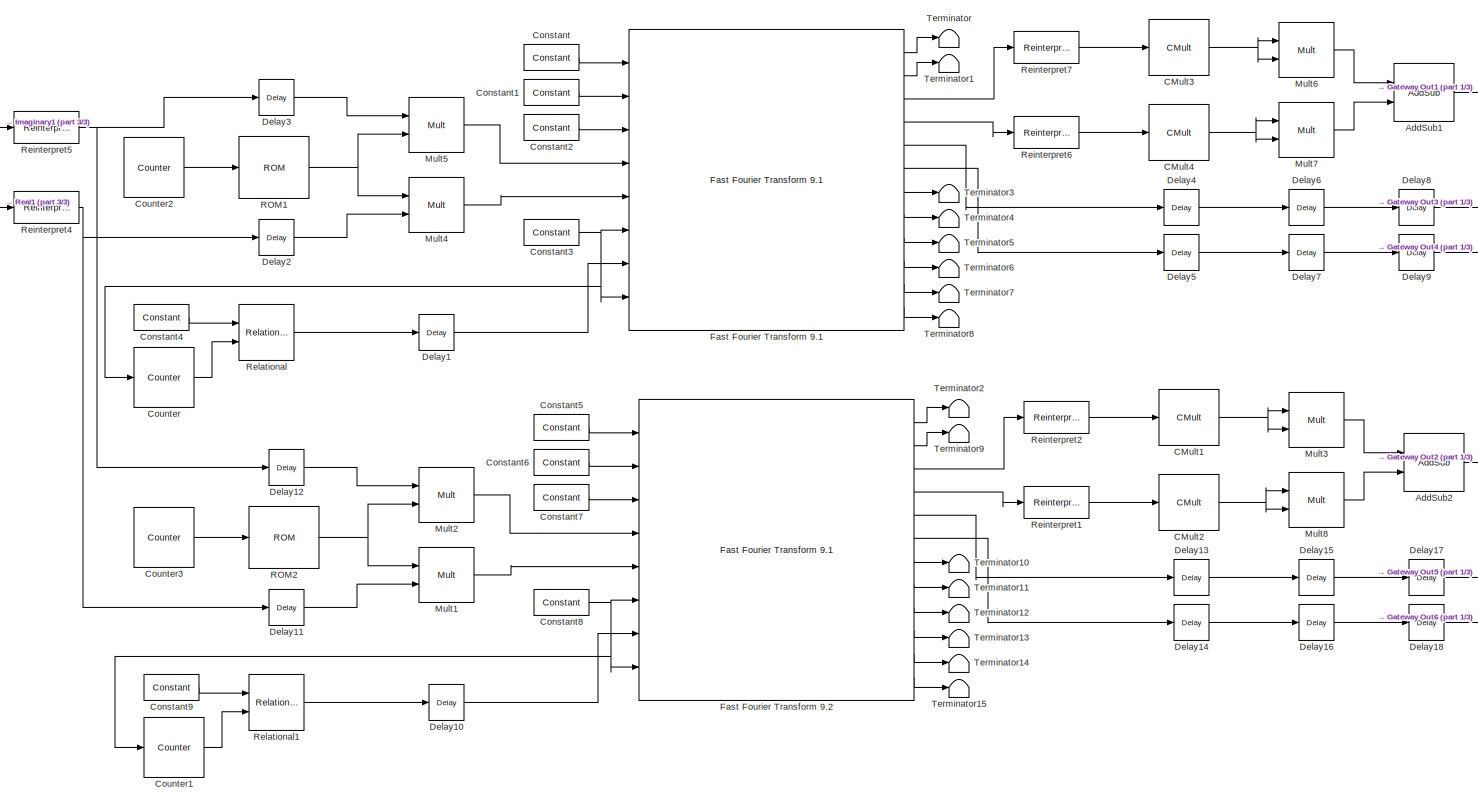
[diagram: STFT_256 - part 2/3, center side, full height]
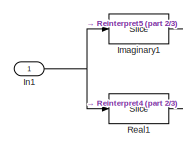
[diagram: STFT_256 - part 3/3, top left region]
BLOCK [SubSystem] STFT_256
  Ports = [1, 6]
  RequestExecContextInheritance = off
BLOCK [Reference] STFT_256/AddSub1  REF=hdlBasic/AddSub
  Ports = [2, 1]
  SourceBlock = hdlBasic/AddSub
  SourceType = Adder/Subtracter Block
BLOCK [Reference] STFT_256/AddSub2  REF=hdlBasic/AddSub
  Ports = [2, 1]
  SourceBlock = hdlBasic/AddSub
  SourceType = Adder/Subtracter Block
BLOCK [Reference] STFT_256/CMult1  REF=hdlBasic/CMult
  Commented = through
  Ports = [1, 1]
  SourceBlock = hdlBasic/CMult
  SourceType = Constant Multiplier Block
BLOCK [Reference] STFT_256/CMult2  REF=hdlBasic/CMult
  Commented = through
  Ports = [1, 1]
  SourceBlock = hdlBasic/CMult
  SourceType = Constant Multiplier Block
BLOCK [Reference] STFT_256/CMult3  REF=hdlBasic/CMult
  Commented = through
  Ports = [1, 1]
  SourceBlock = hdlBasic/CMult
  SourceType = Constant Multiplier Block
BLOCK [Reference] STFT_256/CMult4  REF=hdlBasic/CMult
  Commented = through
  Ports = [1, 1]
  SourceBlock = hdlBasic/CMult
  SourceType = Constant Multiplier Block
BLOCK [DataTypeConversion] STFT_256/Cast1
  Commented = on
  OutDataTypeStr = double
  RndMeth = Floor
  SaturateOnIntegerOverflow = off
BLOCK [DataTypeConversion] STFT_256/Cast2
  Commented = on
  OutDataTypeStr = double
  RndMeth = Floor
  SaturateOnIntegerOverflow = off
BLOCK [ComplexToRealImag] STFT_256/Complex to Real-Imag1
  Ports = [1, 2]
BLOCK [ComplexToRealImag] STFT_256/Complex to Real-Imag2
  Ports = [1, 2]
BLOCK [Reference] STFT_256/Constant  REF=hdlBasic/Constant
  Ports = [0, 1]
  SourceBlock = hdlBasic/Constant
  SourceType = Constant Block Block
BLOCK [Reference] STFT_256/Constant1  REF=hdlBasic/Constant
  Ports = [0, 1]
  SourceBlock = hdlBasic/Constant
  SourceType = Constant Block Block
BLOCK [Reference] STFT_256/Constant2  REF=hdlBasic/Constant
  Ports = [0, 1]
  SourceBlock = hdlBasic/Constant
  SourceType = Constant Block Block
BLOCK [Reference] STFT_256/Constant3  REF=hdlBasic/Constant
  Ports = [0, 1]
  SourceBlock = hdlBasic/Constant
  SourceType = Constant Block Block
BLOCK [Reference] STFT_256/Constant4  REF=hdlBasic/Constant
  Ports = [0, 1]
  SourceBlock = hdlBasic/Constant
  SourceType = Constant Block Block
BLOCK [Reference] STFT_256/Constant5  REF=hdlBasic/Constant
  Ports = [0, 1]
  SourceBlock = hdlBasic/Constant
  SourceType = Constant Block Block
BLOCK [Reference] STFT_256/Constant6  REF=hdlBasic/Constant
  Ports = [0, 1]
  SourceBlock = hdlBasic/Constant
  SourceType = Constant Block Block
BLOCK [Reference] STFT_256/Constant7  REF=hdlBasic/Constant
  Ports = [0, 1]
  SourceBlock = hdlBasic/Constant
  SourceType = Constant Block Block
BLOCK [Reference] STFT_256/Constant8  REF=hdlBasic/Constant
  Ports = [0, 1]
  SourceBlock = hdlBasic/Constant
  SourceType = Constant Block Block
BLOCK [Reference] STFT_256/Constant9  REF=hdlBasic/Constant
  Ports = [0, 1]
  SourceBlock = hdlBasic/Constant
  SourceType = Constant Block Block
BLOCK [Reference] STFT_256/Counter  REF=hdlBasic/Counter
  Ports = [1, 1]
  SourceBlock = hdlBasic/Counter
  SourceType = Counter Block
BLOCK [Reference] STFT_256/Counter1  REF=hdlBasic/Counter
  Ports = [1, 1]
  SourceBlock = hdlBasic/Counter
  SourceType = Counter Block
BLOCK [Reference] STFT_256/Counter2  REF=hdlBasic/Counter
  Ports = [0, 1]
  SourceBlock = hdlBasic/Counter
  SourceType = Counter Block
BLOCK [Reference] STFT_256/Counter3  REF=hdlBasic/Counter
  Ports = [0, 1]
  SourceBlock = hdlBasic/Counter
  SourceType = Counter Block
BLOCK [DataTypeConversion] STFT_256/Data Type Conversion1
  OutDataTypeStr = double
  RndMeth = Floor
BLOCK [DataTypeConversion] STFT_256/Data Type Conversion8
  OutDataTypeStr = double
  RndMeth = Floor
BLOCK [Reference] STFT_256/Delay1  REF=hdlBasic/Delay
  Ports = [1, 1]
  SourceBlock = hdlBasic/Delay
  SourceType = Delay Block
BLOCK [Reference] STFT_256/Delay10  REF=hdlBasic/Delay
  Ports = [1, 1]
  SourceBlock = hdlBasic/Delay
  SourceType = Delay Block
BLOCK [Reference] STFT_256/Delay11  REF=hdlBasic/Delay
  Ports = [1, 1]
  SourceBlock = hdlBasic/Delay
  SourceType = Delay Block
BLOCK [Reference] STFT_256/Delay12  REF=hdlBasic/Delay
  NameLocation = top
  Ports = [1, 1]
  SourceBlock = hdlBasic/Delay
  SourceType = Delay Block
BLOCK [Reference] STFT_256/Delay13  REF=hdlBasic/Delay
  Commented = through
  Ports = [1, 1]
  SourceBlock = hdlBasic/Delay
  SourceType = Delay Block
BLOCK [Reference] STFT_256/Delay14  REF=hdlBasic/Delay
  Commented = through
  Ports = [1, 1]
  SourceBlock = hdlBasic/Delay
  SourceType = Delay Block
BLOCK [Reference] STFT_256/Delay15  REF=hdlBasic/Delay
  Ports = [1, 1]
  SourceBlock = hdlBasic/Delay
  SourceType = Delay Block
BLOCK [Reference] STFT_256/Delay16  REF=hdlBasic/Delay
  Ports = [1, 1]
  SourceBlock = hdlBasic/Delay
  SourceType = Delay Block
BLOCK [Reference] STFT_256/Delay17  REF=hdlBasic/Delay
  Ports = [1, 1]
  SourceBlock = hdlBasic/Delay
  SourceType = Delay Block
BLOCK [Reference] STFT_256/Delay18  REF=hdlBasic/Delay
  Ports = [1, 1]
  SourceBlock = hdlBasic/Delay
  SourceType = Delay Block
BLOCK [Reference] STFT_256/Delay2  REF=hdlBasic/Delay
  Ports = [1, 1]
  SourceBlock = hdlBasic/Delay
  SourceType = Delay Block
BLOCK [Reference] STFT_256/Delay3  REF=hdlBasic/Delay
  NameLocation = top
  Ports = [1, 1]
  SourceBlock = hdlBasic/Delay
  SourceType = Delay Block
BLOCK [Reference] STFT_256/Delay4  REF=hdlBasic/Delay
  Commented = through
  Ports = [1, 1]
  SourceBlock = hdlBasic/Delay
  SourceType = Delay Block
BLOCK [Reference] STFT_256/Delay5  REF=hdlBasic/Delay
  Commented = through
  Ports = [1, 1]
  SourceBlock = hdlBasic/Delay
  SourceType = Delay Block
BLOCK [Reference] STFT_256/Delay6  REF=hdlBasic/Delay
  Ports = [1, 1]
  SourceBlock = hdlBasic/Delay
  SourceType = Delay Block
BLOCK [Reference] STFT_256/Delay7  REF=hdlBasic/Delay
  Ports = [1, 1]
  SourceBlock = hdlBasic/Delay
  SourceType = Delay Block
BLOCK [Reference] STFT_256/Delay8  REF=hdlBasic/Delay
  Ports = [1, 1]
  SourceBlock = hdlBasic/Delay
  SourceType = Delay Block
BLOCK [Reference] STFT_256/Delay9  REF=hdlBasic/Delay
  Ports = [1, 1]
  SourceBlock = hdlBasic/Delay
  SourceType = Delay Block
BLOCK [Reference] STFT_256/Fast Fourier Transform 9.1  REF=hdlDSPIP/Fast Fourier Transform 9.1 
  Ports = [8, 12]
  SourceBlock = hdlDSPIP/Fast Fourier Transform 9.1
  SourceType = Fast Fourier Transform 9.1  Block
BLOCK [Reference] STFT_256/Fast Fourier Transform 9.2  REF=hdlDSPIP/Fast Fourier Transform 9.1 
  Ports = [8, 12]
  SourceBlock = hdlDSPIP/Fast Fourier Transform 9.1
  SourceType = Fast Fourier Transform 9.1  Block
BLOCK [Gain] STFT_256/Gain1
  Gain = 20
BLOCK [Gain] STFT_256/Gain8
  Gain = 20
BLOCK [Reference] STFT_256/Gateway Out1  REF=hdlBasic/Gateway Out
  Ports = [1, 1]
  SourceBlock = hdlBasic/Gateway Out
  SourceType = Gateway Out Block
BLOCK [Reference] STFT_256/Gateway Out2  REF=hdlBasic/Gateway Out
  Ports = [1, 1]
  SourceBlock = hdlBasic/Gateway Out
  SourceType = Gateway Out Block
BLOCK [Reference] STFT_256/Gateway Out3  REF=hdlBasic/Gateway Out
  Ports = [1, 1]
  SourceBlock = hdlBasic/Gateway Out
  SourceType = Gateway Out Block
BLOCK [Reference] STFT_256/Gateway Out4  REF=hdlBasic/Gateway Out
  Ports = [1, 1]
  SourceBlock = hdlBasic/Gateway Out
  SourceType = Gateway Out Block
BLOCK [Reference] STFT_256/Gateway Out5  REF=hdlBasic/Gateway Out
  Ports = [1, 1]
  SourceBlock = hdlBasic/Gateway Out
  SourceType = Gateway Out Block
BLOCK [Reference] STFT_256/Gateway Out6  REF=hdlBasic/Gateway Out
  Ports = [1, 1]
  SourceBlock = hdlBasic/Gateway Out
  SourceType = Gateway Out Block
BLOCK [Reference] STFT_256/Imaginary1  REF=hdlBasic/Slice
  Ports = [1, 1]
  SourceBlock = hdlBasic/Slice
  SourceType = Bit Slice Extractor Block
BLOCK [Inport] STFT_256/In1
BLOCK [Math] STFT_256/Log1
  Operator = log10
  OutputSignalType = complex
  Ports = [1, 1]
BLOCK [Math] STFT_256/Log6
  Operator = log10
  OutputSignalType = complex
  Ports = [1, 1]
BLOCK [Reference] STFT_256/Mult1  REF=hdlBasic/Mult
  Ports = [2, 1]
  SourceBlock = hdlBasic/Mult
  SourceType = Multiplier Block
BLOCK [Reference] STFT_256/Mult2  REF=hdlBasic/Mult
  Ports = [2, 1]
  SourceBlock = hdlBasic/Mult
  SourceType = Multiplier Block
BLOCK [Reference] STFT_256/Mult3  REF=hdlBasic/Mult
  Ports = [2, 1]
  SourceBlock = hdlBasic/Mult
  SourceType = Multiplier Block
BLOCK [Reference] STFT_256/Mult4  REF=hdlBasic/Mult
  Ports = [2, 1]
  SourceBlock = hdlBasic/Mult
  SourceType = Multiplier Block
BLOCK [Reference] STFT_256/Mult5  REF=hdlBasic/Mult
  Ports = [2, 1]
  SourceBlock = hdlBasic/Mult
  SourceType = Multiplier Block
BLOCK [Reference] STFT_256/Mult6  REF=hdlBasic/Mult
  Ports = [2, 1]
  SourceBlock = hdlBasic/Mult
  SourceType = Multiplier Block
BLOCK [Reference] STFT_256/Mult7  REF=hdlBasic/Mult
  Ports = [2, 1]
  SourceBlock = hdlBasic/Mult
  SourceType = Multiplier Block
BLOCK [Reference] STFT_256/Mult8  REF=hdlBasic/Mult
  Ports = [2, 1]
  SourceBlock = hdlBasic/Mult
  SourceType = Multiplier Block
BLOCK [Outport] STFT_256/Out1
BLOCK [Outport] STFT_256/Out2
  Port = 2
BLOCK [Outport] STFT_256/Out3
  Port = 3
BLOCK [Outport] STFT_256/Out4
  Port = 4
BLOCK [Outport] STFT_256/Out5
  Port = 5
BLOCK [Outport] STFT_256/Out6
  Port = 6
BLOCK [Reference] STFT_256/ROM1  REF=hdlBasic/ROM
  Ports = [1, 1]
  SourceBlock = hdlBasic/ROM
  SourceType = Single Port Read-Only Memory Block
BLOCK [Reference] STFT_256/ROM2  REF=hdlBasic/ROM
  Ports = [1, 1]
  SourceBlock = hdlBasic/ROM
  SourceType = Single Port Read-Only Memory Block
BLOCK [Reference] STFT_256/Real1  REF=hdlBasic/Slice
  Ports = [1, 1]
  SourceBlock = hdlBasic/Slice
  SourceType = Bit Slice Extractor Block
BLOCK [Reference] STFT_256/Reinterpret1  REF=hdlBasic/Reinterpret
  Ports = [1, 1]
  SourceBlock = hdlBasic/Reinterpret
  SourceType = Type Reinterpreter Block
BLOCK [Reference] STFT_256/Reinterpret2  REF=hdlBasic/Reinterpret
  Ports = [1, 1]
  SourceBlock = hdlBasic/Reinterpret
  SourceType = Type Reinterpreter Block
BLOCK [Reference] STFT_256/Reinterpret4  REF=hdlBasic/Reinterpret
  Ports = [1, 1]
  SourceBlock = hdlBasic/Reinterpret
  SourceType = Type Reinterpreter Block
BLOCK [Reference] STFT_256/Reinterpret5  REF=hdlBasic/Reinterpret
  Ports = [1, 1]
  SourceBlock = hdlBasic/Reinterpret
  SourceType = Type Reinterpreter Block
BLOCK [Reference] STFT_256/Reinterpret6  REF=hdlBasic/Reinterpret
  Ports = [1, 1]
  SourceBlock = hdlBasic/Reinterpret
  SourceType = Type Reinterpreter Block
BLOCK [Reference] STFT_256/Reinterpret7  REF=hdlBasic/Reinterpret
  Ports = [1, 1]
  SourceBlock = hdlBasic/Reinterpret
  SourceType = Type Reinterpreter Block
BLOCK [Reference] STFT_256/Relational  REF=hdlBasic/Relational
  Ports = [2, 1]
  SourceBlock = hdlBasic/Relational
  SourceType = Arithmetic Relational Operator Block
BLOCK [Reference] STFT_256/Relational1  REF=hdlBasic/Relational
  Ports = [2, 1]
  SourceBlock = hdlBasic/Relational
  SourceType = Arithmetic Relational Operator Block
BLOCK [Scope] STFT_256/Scope 1
  Commented = on
  Floating = off
  NumInputPorts = 1
  Ports = [1]
BLOCK [Scope] STFT_256/Scope 10
  Commented = on
  Floating = off
  NumInputPorts = 1
  Ports = [1]
BLOCK [Scope] STFT_256/Scope 2
  Commented = on
  Floating = off
  NumInputPorts = 1
  Ports = [1]
BLOCK [Scope] STFT_256/Scope 3
  Commented = on
  Floating = off
  NumInputPorts = 1
  Ports = [1]
BLOCK [Scope] STFT_256/Scope 4
  Commented = on
  Floating = off
  NumInputPorts = 1
  Ports = [1]
BLOCK [Scope] STFT_256/Scope 5
  Commented = on
  Floating = off
  NumInputPorts = 1
  Ports = [1]
BLOCK [Scope] STFT_256/Scope 6
  Commented = on
  Floating = off
  NumInputPorts = 1
  Ports = [1]
BLOCK [Scope] STFT_256/Scope 7
  Commented = on
  Floating = off
  NumInputPorts = 1
  Ports = [1]
BLOCK [Scope] STFT_256/Scope 8
  Commented = on
  Floating = off
  NumInputPorts = 1
  Ports = [1]
BLOCK [Scope] STFT_256/Scope 9
  Commented = on
  Floating = off
  NumInputPorts = 1
  Ports = [1]
BLOCK [Terminator] STFT_256/Terminator
BLOCK [Terminator] STFT_256/Terminator1
BLOCK [Terminator] STFT_256/Terminator10
BLOCK [Terminator] STFT_256/Terminator11
BLOCK [Terminator] STFT_256/Terminator12
BLOCK [Terminator] STFT_256/Terminator13
BLOCK [Terminator] STFT_256/Terminator14
BLOCK [Terminator] STFT_256/Terminator15
BLOCK [Terminator] STFT_256/Terminator2
BLOCK [Terminator] STFT_256/Terminator3
BLOCK [Terminator] STFT_256/Terminator4
BLOCK [Terminator] STFT_256/Terminator5
BLOCK [Terminator] STFT_256/Terminator6
BLOCK [Terminator] STFT_256/Terminator7
BLOCK [Terminator] STFT_256/Terminator8
BLOCK [Terminator] STFT_256/Terminator9
BLOCK [ToWorkspace] STFT_256/To Workspace
  Commented = on
  FixptAsFi = on
  MaxDataPoints = inf
  Ports = [1]
  SampleTime = -1
  Save2DSignal = 2-D array (concatenate along first dimension)
  VariableName = FFT_out_abs_ham
BLOCK [ToWorkspace] STFT_256/To Workspace1
  Commented = on
  FixptAsFi = on
  MaxDataPoints = inf
  Ports = [1]
  SampleTime = -1
  Save2DSignal = 2-D array (concatenate along first dimension)
  VariableName = FFT_out_abs_han
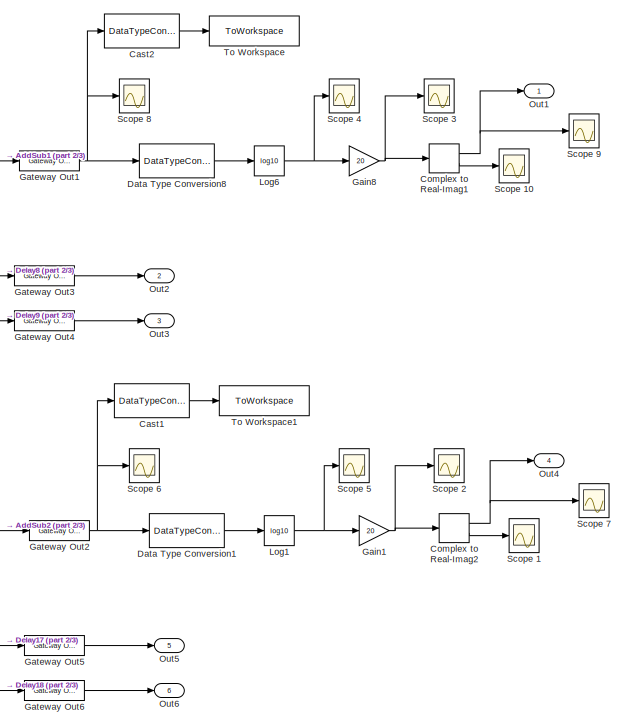
[diagram: STFT_4096 - part 1/3, right side, full height]
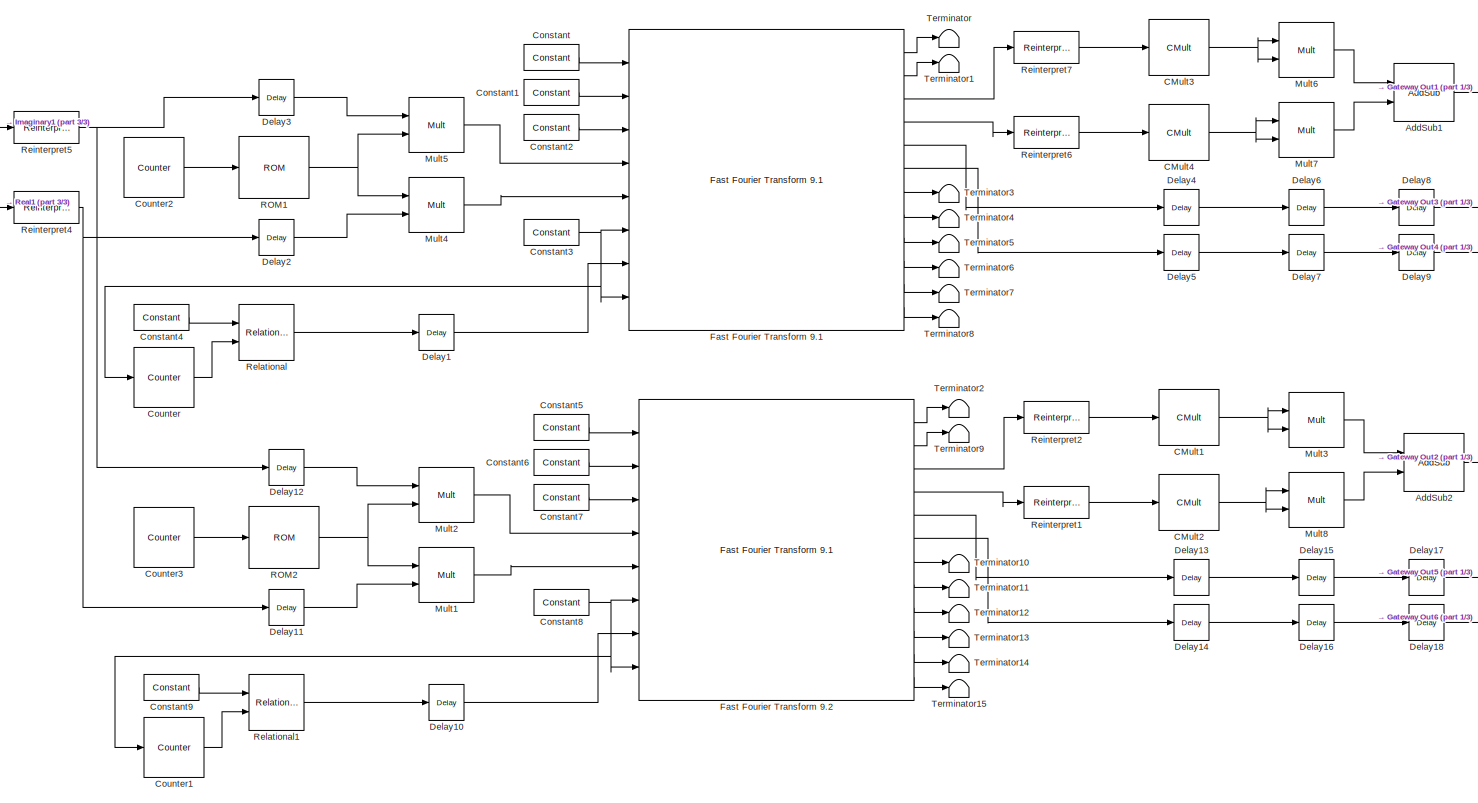
[diagram: STFT_4096 - part 2/3, center side, full height]
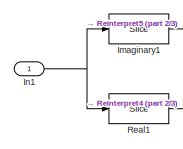
[diagram: STFT_4096 - part 3/3, top left region]
BLOCK [SubSystem] STFT_4096
  Ports = [1, 6]
  RequestExecContextInheritance = off
BLOCK [Reference] STFT_4096/AddSub1  REF=hdlBasic/AddSub
  Ports = [2, 1]
  SourceBlock = hdlBasic/AddSub
  SourceType = Adder/Subtracter Block
BLOCK [Reference] STFT_4096/AddSub2  REF=hdlBasic/AddSub
  Ports = [2, 1]
  SourceBlock = hdlBasic/AddSub
  SourceType = Adder/Subtracter Block
BLOCK [Reference] STFT_4096/CMult1  REF=hdlBasic/CMult
  Commented = through
  Ports = [1, 1]
  SourceBlock = hdlBasic/CMult
  SourceType = Constant Multiplier Block
BLOCK [Reference] STFT_4096/CMult2  REF=hdlBasic/CMult
  Commented = through
  Ports = [1, 1]
  SourceBlock = hdlBasic/CMult
  SourceType = Constant Multiplier Block
BLOCK [Reference] STFT_4096/CMult3  REF=hdlBasic/CMult
  Commented = through
  Ports = [1, 1]
  SourceBlock = hdlBasic/CMult
  SourceType = Constant Multiplier Block
BLOCK [Reference] STFT_4096/CMult4  REF=hdlBasic/CMult
  Commented = through
  Ports = [1, 1]
  SourceBlock = hdlBasic/CMult
  SourceType = Constant Multiplier Block
BLOCK [DataTypeConversion] STFT_4096/Cast1
  Commented = on
  OutDataTypeStr = double
  RndMeth = Floor
  SaturateOnIntegerOverflow = off
BLOCK [DataTypeConversion] STFT_4096/Cast2
  Commented = on
  OutDataTypeStr = double
  RndMeth = Floor
  SaturateOnIntegerOverflow = off
BLOCK [ComplexToRealImag] STFT_4096/Complex to Real-Imag1
  Ports = [1, 2]
BLOCK [ComplexToRealImag] STFT_4096/Complex to Real-Imag2
  Ports = [1, 2]
BLOCK [Reference] STFT_4096/Constant  REF=hdlBasic/Constant
  Ports = [0, 1]
  SourceBlock = hdlBasic/Constant
  SourceType = Constant Block Block
BLOCK [Reference] STFT_4096/Constant1  REF=hdlBasic/Constant
  Ports = [0, 1]
  SourceBlock = hdlBasic/Constant
  SourceType = Constant Block Block
BLOCK [Reference] STFT_4096/Constant2  REF=hdlBasic/Constant
  Ports = [0, 1]
  SourceBlock = hdlBasic/Constant
  SourceType = Constant Block Block
BLOCK [Reference] STFT_4096/Constant3  REF=hdlBasic/Constant
  Ports = [0, 1]
  SourceBlock = hdlBasic/Constant
  SourceType = Constant Block Block
BLOCK [Reference] STFT_4096/Constant4  REF=hdlBasic/Constant
  Ports = [0, 1]
  SourceBlock = hdlBasic/Constant
  SourceType = Constant Block Block
BLOCK [Reference] STFT_4096/Constant5  REF=hdlBasic/Constant
  Ports = [0, 1]
  SourceBlock = hdlBasic/Constant
  SourceType = Constant Block Block
BLOCK [Reference] STFT_4096/Constant6  REF=hdlBasic/Constant
  Ports = [0, 1]
  SourceBlock = hdlBasic/Constant
  SourceType = Constant Block Block
BLOCK [Reference] STFT_4096/Constant7  REF=hdlBasic/Constant
  Ports = [0, 1]
  SourceBlock = hdlBasic/Constant
  SourceType = Constant Block Block
BLOCK [Reference] STFT_4096/Constant8  REF=hdlBasic/Constant
  Ports = [0, 1]
  SourceBlock = hdlBasic/Constant
  SourceType = Constant Block Block
BLOCK [Reference] STFT_4096/Constant9  REF=hdlBasic/Constant
  Ports = [0, 1]
  SourceBlock = hdlBasic/Constant
  SourceType = Constant Block Block
BLOCK [Reference] STFT_4096/Counter  REF=hdlBasic/Counter
  Ports = [1, 1]
  SourceBlock = hdlBasic/Counter
  SourceType = Counter Block
BLOCK [Reference] STFT_4096/Counter1  REF=hdlBasic/Counter
  Ports = [1, 1]
  SourceBlock = hdlBasic/Counter
  SourceType = Counter Block
BLOCK [Reference] STFT_4096/Counter2  REF=hdlBasic/Counter
  Ports = [0, 1]
  SourceBlock = hdlBasic/Counter
  SourceType = Counter Block
BLOCK [Reference] STFT_4096/Counter3  REF=hdlBasic/Counter
  Ports = [0, 1]
  SourceBlock = hdlBasic/Counter
  SourceType = Counter Block
BLOCK [DataTypeConversion] STFT_4096/Data Type Conversion1
  OutDataTypeStr = double
  RndMeth = Floor
BLOCK [DataTypeConversion] STFT_4096/Data Type Conversion8
  OutDataTypeStr = double
  RndMeth = Floor
BLOCK [Reference] STFT_4096/Delay1  REF=hdlBasic/Delay
  Ports = [1, 1]
  SourceBlock = hdlBasic/Delay
  SourceType = Delay Block
BLOCK [Reference] STFT_4096/Delay10  REF=hdlBasic/Delay
  Ports = [1, 1]
  SourceBlock = hdlBasic/Delay
  SourceType = Delay Block
BLOCK [Reference] STFT_4096/Delay11  REF=hdlBasic/Delay
  Ports = [1, 1]
  SourceBlock = hdlBasic/Delay
  SourceType = Delay Block
BLOCK [Reference] STFT_4096/Delay12  REF=hdlBasic/Delay
  NameLocation = top
  Ports = [1, 1]
  SourceBlock = hdlBasic/Delay
  SourceType = Delay Block
BLOCK [Reference] STFT_4096/Delay13  REF=hdlBasic/Delay
  Commented = through
  Ports = [1, 1]
  SourceBlock = hdlBasic/Delay
  SourceType = Delay Block
BLOCK [Reference] STFT_4096/Delay14  REF=hdlBasic/Delay
  Commented = through
  Ports = [1, 1]
  SourceBlock = hdlBasic/Delay
  SourceType = Delay Block
BLOCK [Reference] STFT_4096/Delay15  REF=hdlBasic/Delay
  Ports = [1, 1]
  SourceBlock = hdlBasic/Delay
  SourceType = Delay Block
BLOCK [Reference] STFT_4096/Delay16  REF=hdlBasic/Delay
  Ports = [1, 1]
  SourceBlock = hdlBasic/Delay
  SourceType = Delay Block
BLOCK [Reference] STFT_4096/Delay17  REF=hdlBasic/Delay
  Ports = [1, 1]
  SourceBlock = hdlBasic/Delay
  SourceType = Delay Block
BLOCK [Reference] STFT_4096/Delay18  REF=hdlBasic/Delay
  Ports = [1, 1]
  SourceBlock = hdlBasic/Delay
  SourceType = Delay Block
BLOCK [Reference] STFT_4096/Delay2  REF=hdlBasic/Delay
  Ports = [1, 1]
  SourceBlock = hdlBasic/Delay
  SourceType = Delay Block
BLOCK [Reference] STFT_4096/Delay3  REF=hdlBasic/Delay
  NameLocation = top
  Ports = [1, 1]
  SourceBlock = hdlBasic/Delay
  SourceType = Delay Block
BLOCK [Reference] STFT_4096/Delay4  REF=hdlBasic/Delay
  Commented = through
  Ports = [1, 1]
  SourceBlock = hdlBasic/Delay
  SourceType = Delay Block
BLOCK [Reference] STFT_4096/Delay5  REF=hdlBasic/Delay
  Commented = through
  Ports = [1, 1]
  SourceBlock = hdlBasic/Delay
  SourceType = Delay Block
BLOCK [Reference] STFT_4096/Delay6  REF=hdlBasic/Delay
  Ports = [1, 1]
  SourceBlock = hdlBasic/Delay
  SourceType = Delay Block
BLOCK [Reference] STFT_4096/Delay7  REF=hdlBasic/Delay
  Ports = [1, 1]
  SourceBlock = hdlBasic/Delay
  SourceType = Delay Block
BLOCK [Reference] STFT_4096/Delay8  REF=hdlBasic/Delay
  Ports = [1, 1]
  SourceBlock = hdlBasic/Delay
  SourceType = Delay Block
BLOCK [Reference] STFT_4096/Delay9  REF=hdlBasic/Delay
  Ports = [1, 1]
  SourceBlock = hdlBasic/Delay
  SourceType = Delay Block
BLOCK [Reference] STFT_4096/Fast Fourier Transform 9.1  REF=hdlDSPIP/Fast Fourier Transform 9.1 
  Ports = [8, 12]
  SourceBlock = hdlDSPIP/Fast Fourier Transform 9.1
  SourceType = Fast Fourier Transform 9.1  Block
BLOCK [Reference] STFT_4096/Fast Fourier Transform 9.2  REF=hdlDSPIP/Fast Fourier Transform 9.1 
  Ports = [8, 12]
  SourceBlock = hdlDSPIP/Fast Fourier Transform 9.1
  SourceType = Fast Fourier Transform 9.1  Block
BLOCK [Gain] STFT_4096/Gain1
  Gain = 20
BLOCK [Gain] STFT_4096/Gain8
  Gain = 20
BLOCK [Reference] STFT_4096/Gateway Out1  REF=hdlBasic/Gateway Out
  Ports = [1, 1]
  SourceBlock = hdlBasic/Gateway Out
  SourceType = Gateway Out Block
BLOCK [Reference] STFT_4096/Gateway Out2  REF=hdlBasic/Gateway Out
  Ports = [1, 1]
  SourceBlock = hdlBasic/Gateway Out
  SourceType = Gateway Out Block
BLOCK [Reference] STFT_4096/Gateway Out3  REF=hdlBasic/Gateway Out
  Ports = [1, 1]
  SourceBlock = hdlBasic/Gateway Out
  SourceType = Gateway Out Block
BLOCK [Reference] STFT_4096/Gateway Out4  REF=hdlBasic/Gateway Out
  Ports = [1, 1]
  SourceBlock = hdlBasic/Gateway Out
  SourceType = Gateway Out Block
BLOCK [Reference] STFT_4096/Gateway Out5  REF=hdlBasic/Gateway Out
  Ports = [1, 1]
  SourceBlock = hdlBasic/Gateway Out
  SourceType = Gateway Out Block
BLOCK [Reference] STFT_4096/Gateway Out6  REF=hdlBasic/Gateway Out
  Ports = [1, 1]
  SourceBlock = hdlBasic/Gateway Out
  SourceType = Gateway Out Block
BLOCK [Reference] STFT_4096/Imaginary1  REF=hdlBasic/Slice
  Ports = [1, 1]
  SourceBlock = hdlBasic/Slice
  SourceType = Bit Slice Extractor Block
BLOCK [Inport] STFT_4096/In1
BLOCK [Math] STFT_4096/Log1
  Operator = log10
  OutputSignalType = complex
  Ports = [1, 1]
BLOCK [Math] STFT_4096/Log6
  Operator = log10
  OutputSignalType = complex
  Ports = [1, 1]
BLOCK [Reference] STFT_4096/Mult1  REF=hdlBasic/Mult
  Ports = [2, 1]
  SourceBlock = hdlBasic/Mult
  SourceType = Multiplier Block
BLOCK [Reference] STFT_4096/Mult2  REF=hdlBasic/Mult
  Ports = [2, 1]
  SourceBlock = hdlBasic/Mult
  SourceType = Multiplier Block
BLOCK [Reference] STFT_4096/Mult3  REF=hdlBasic/Mult
  Ports = [2, 1]
  SourceBlock = hdlBasic/Mult
  SourceType = Multiplier Block
BLOCK [Reference] STFT_4096/Mult4  REF=hdlBasic/Mult
  Ports = [2, 1]
  SourceBlock = hdlBasic/Mult
  SourceType = Multiplier Block
BLOCK [Reference] STFT_4096/Mult5  REF=hdlBasic/Mult
  Ports = [2, 1]
  SourceBlock = hdlBasic/Mult
  SourceType = Multiplier Block
BLOCK [Reference] STFT_4096/Mult6  REF=hdlBasic/Mult
  Ports = [2, 1]
  SourceBlock = hdlBasic/Mult
  SourceType = Multiplier Block
BLOCK [Reference] STFT_4096/Mult7  REF=hdlBasic/Mult
  Ports = [2, 1]
  SourceBlock = hdlBasic/Mult
  SourceType = Multiplier Block
BLOCK [Reference] STFT_4096/Mult8  REF=hdlBasic/Mult
  Ports = [2, 1]
  SourceBlock = hdlBasic/Mult
  SourceType = Multiplier Block
BLOCK [Outport] STFT_4096/Out1
BLOCK [Outport] STFT_4096/Out2
  Port = 2
BLOCK [Outport] STFT_4096/Out3
  Port = 3
BLOCK [Outport] STFT_4096/Out4
  Port = 4
BLOCK [Outport] STFT_4096/Out5
  Port = 5
BLOCK [Outport] STFT_4096/Out6
  Port = 6
BLOCK [Reference] STFT_4096/ROM1  REF=hdlBasic/ROM
  Ports = [1, 1]
  SourceBlock = hdlBasic/ROM
  SourceType = Single Port Read-Only Memory Block
BLOCK [Reference] STFT_4096/ROM2  REF=hdlBasic/ROM
  Ports = [1, 1]
  SourceBlock = hdlBasic/ROM
  SourceType = Single Port Read-Only Memory Block
BLOCK [Reference] STFT_4096/Real1  REF=hdlBasic/Slice
  Ports = [1, 1]
  SourceBlock = hdlBasic/Slice
  SourceType = Bit Slice Extractor Block
BLOCK [Reference] STFT_4096/Reinterpret1  REF=hdlBasic/Reinterpret
  Ports = [1, 1]
  SourceBlock = hdlBasic/Reinterpret
  SourceType = Type Reinterpreter Block
BLOCK [Reference] STFT_4096/Reinterpret2  REF=hdlBasic/Reinterpret
  Ports = [1, 1]
  SourceBlock = hdlBasic/Reinterpret
  SourceType = Type Reinterpreter Block
BLOCK [Reference] STFT_4096/Reinterpret4  REF=hdlBasic/Reinterpret
  Ports = [1, 1]
  SourceBlock = hdlBasic/Reinterpret
  SourceType = Type Reinterpreter Block
BLOCK [Reference] STFT_4096/Reinterpret5  REF=hdlBasic/Reinterpret
  Ports = [1, 1]
  SourceBlock = hdlBasic/Reinterpret
  SourceType = Type Reinterpreter Block
BLOCK [Reference] STFT_4096/Reinterpret6  REF=hdlBasic/Reinterpret
  Ports = [1, 1]
  SourceBlock = hdlBasic/Reinterpret
  SourceType = Type Reinterpreter Block
BLOCK [Reference] STFT_4096/Reinterpret7  REF=hdlBasic/Reinterpret
  Ports = [1, 1]
  SourceBlock = hdlBasic/Reinterpret
  SourceType = Type Reinterpreter Block
BLOCK [Reference] STFT_4096/Relational  REF=hdlBasic/Relational
  Ports = [2, 1]
  SourceBlock = hdlBasic/Relational
  SourceType = Arithmetic Relational Operator Block
BLOCK [Reference] STFT_4096/Relational1  REF=hdlBasic/Relational
  Ports = [2, 1]
  SourceBlock = hdlBasic/Relational
  SourceType = Arithmetic Relational Operator Block
BLOCK [Scope] STFT_4096/Scope 1
  Commented = on
  Floating = off
  NumInputPorts = 1
  Ports = [1]
BLOCK [Scope] STFT_4096/Scope 10
  Commented = on
  Floating = off
  NumInputPorts = 1
  Ports = [1]
BLOCK [Scope] STFT_4096/Scope 2
  Commented = on
  Floating = off
  NumInputPorts = 1
  Ports = [1]
BLOCK [Scope] STFT_4096/Scope 3
  Commented = on
  Floating = off
  NumInputPorts = 1
  Ports = [1]
BLOCK [Scope] STFT_4096/Scope 4
  Commented = on
  Floating = off
  NumInputPorts = 1
  Ports = [1]
BLOCK [Scope] STFT_4096/Scope 5
  Commented = on
  Floating = off
  NumInputPorts = 1
  Ports = [1]
BLOCK [Scope] STFT_4096/Scope 6
  Commented = on
  Floating = off
  NumInputPorts = 1
  Ports = [1]
BLOCK [Scope] STFT_4096/Scope 7
  Commented = on
  Floating = off
  NumInputPorts = 1
  Ports = [1]
BLOCK [Scope] STFT_4096/Scope 8
  Commented = on
  Floating = off
  NumInputPorts = 1
  Ports = [1]
BLOCK [Scope] STFT_4096/Scope 9
  Commented = on
  Floating = off
  NumInputPorts = 1
  Ports = [1]
BLOCK [Terminator] STFT_4096/Terminator
BLOCK [Terminator] STFT_4096/Terminator1
BLOCK [Terminator] STFT_4096/Terminator10
BLOCK [Terminator] STFT_4096/Terminator11
BLOCK [Terminator] STFT_4096/Terminator12
BLOCK [Terminator] STFT_4096/Terminator13
BLOCK [Terminator] STFT_4096/Terminator14
BLOCK [Terminator] STFT_4096/Terminator15
BLOCK [Terminator] STFT_4096/Terminator2
BLOCK [Terminator] STFT_4096/Terminator3
BLOCK [Terminator] STFT_4096/Terminator4
BLOCK [Terminator] STFT_4096/Terminator5
BLOCK [Terminator] STFT_4096/Terminator6
BLOCK [Terminator] STFT_4096/Terminator7
BLOCK [Terminator] STFT_4096/Terminator8
BLOCK [Terminator] STFT_4096/Terminator9
BLOCK [ToWorkspace] STFT_4096/To Workspace
  Commented = on
  FixptAsFi = on
  MaxDataPoints = inf
  Ports = [1]
  SampleTime = -1
  Save2DSignal = 2-D array (concatenate along first dimension)
  VariableName = FFT_out_abs_ham
BLOCK [ToWorkspace] STFT_4096/To Workspace1
  Commented = on
  FixptAsFi = on
  MaxDataPoints = inf
  Ports = [1]
  SampleTime = -1
  Save2DSignal = 2-D array (concatenate along first dimension)
  VariableName = FFT_out_abs_han
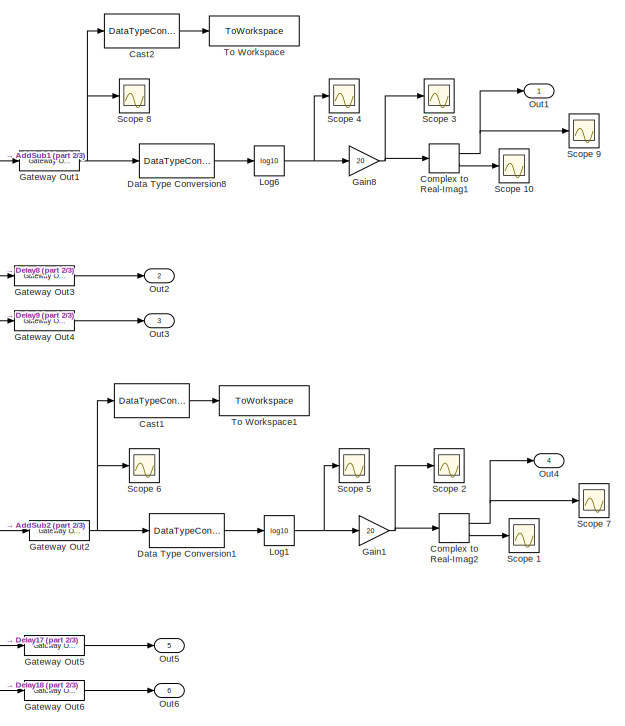
[diagram: STFT_512 - part 1/3, right side, full height]
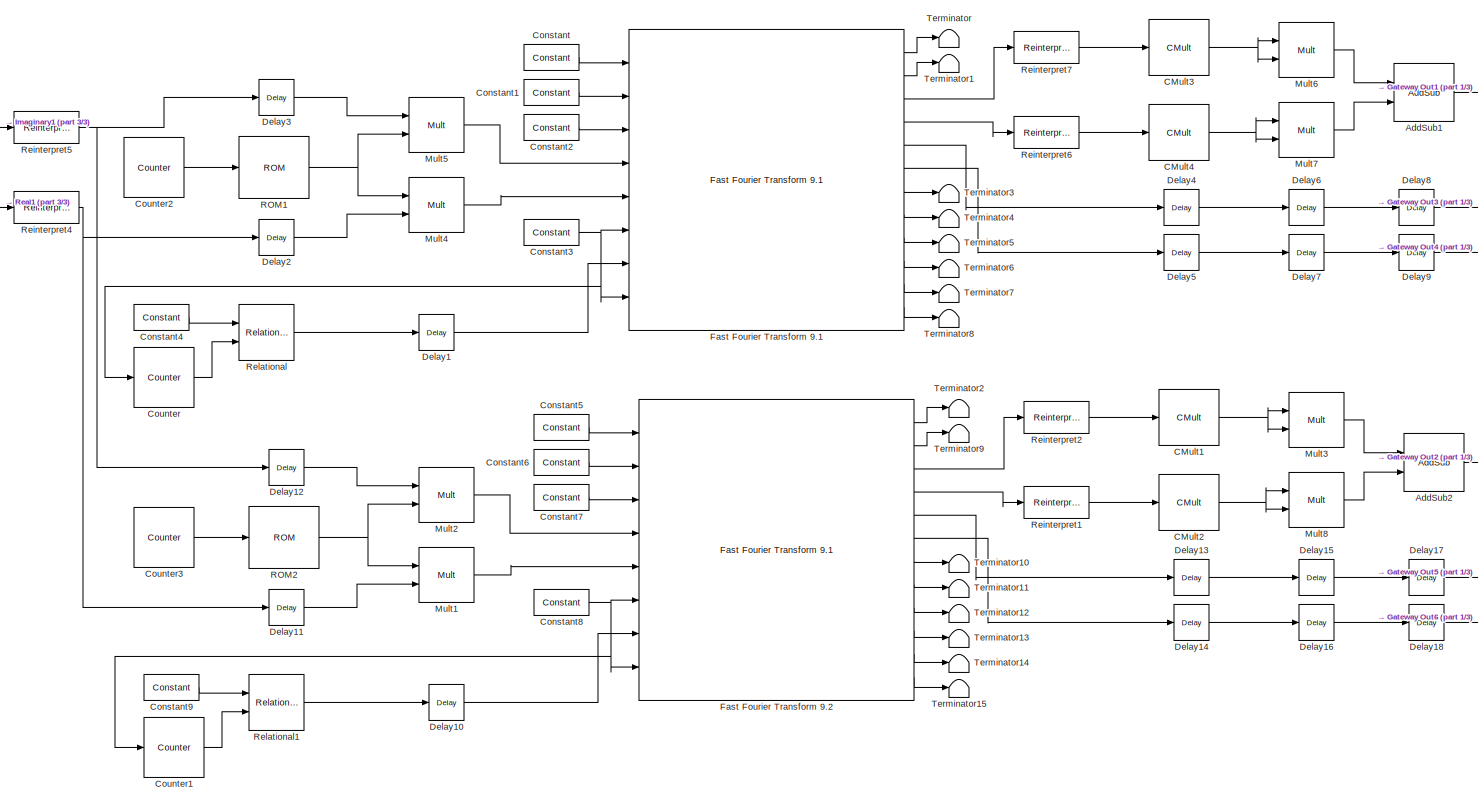
[diagram: STFT_512 - part 2/3, center side, full height]
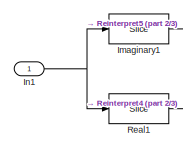
[diagram: STFT_512 - part 3/3, top left region]
BLOCK [SubSystem] STFT_512
  Ports = [1, 6]
  RequestExecContextInheritance = off
BLOCK [Reference] STFT_512/AddSub1  REF=hdlBasic/AddSub
  Ports = [2, 1]
  SourceBlock = hdlBasic/AddSub
  SourceType = Adder/Subtracter Block
BLOCK [Reference] STFT_512/AddSub2  REF=hdlBasic/AddSub
  Ports = [2, 1]
  SourceBlock = hdlBasic/AddSub
  SourceType = Adder/Subtracter Block
BLOCK [Reference] STFT_512/CMult1  REF=hdlBasic/CMult
  Commented = through
  Ports = [1, 1]
  SourceBlock = hdlBasic/CMult
  SourceType = Constant Multiplier Block
BLOCK [Reference] STFT_512/CMult2  REF=hdlBasic/CMult
  Commented = through
  Ports = [1, 1]
  SourceBlock = hdlBasic/CMult
  SourceType = Constant Multiplier Block
BLOCK [Reference] STFT_512/CMult3  REF=hdlBasic/CMult
  Commented = through
  Ports = [1, 1]
  SourceBlock = hdlBasic/CMult
  SourceType = Constant Multiplier Block
BLOCK [Reference] STFT_512/CMult4  REF=hdlBasic/CMult
  Commented = through
  Ports = [1, 1]
  SourceBlock = hdlBasic/CMult
  SourceType = Constant Multiplier Block
BLOCK [DataTypeConversion] STFT_512/Cast1
  Commented = on
  OutDataTypeStr = double
  RndMeth = Floor
  SaturateOnIntegerOverflow = off
BLOCK [DataTypeConversion] STFT_512/Cast2
  Commented = on
  OutDataTypeStr = double
  RndMeth = Floor
  SaturateOnIntegerOverflow = off
BLOCK [ComplexToRealImag] STFT_512/Complex to Real-Imag1
  Ports = [1, 2]
BLOCK [ComplexToRealImag] STFT_512/Complex to Real-Imag2
  Ports = [1, 2]
BLOCK [Reference] STFT_512/Constant  REF=hdlBasic/Constant
  Ports = [0, 1]
  SourceBlock = hdlBasic/Constant
  SourceType = Constant Block Block
BLOCK [Reference] STFT_512/Constant1  REF=hdlBasic/Constant
  Ports = [0, 1]
  SourceBlock = hdlBasic/Constant
  SourceType = Constant Block Block
BLOCK [Reference] STFT_512/Constant2  REF=hdlBasic/Constant
  Ports = [0, 1]
  SourceBlock = hdlBasic/Constant
  SourceType = Constant Block Block
BLOCK [Reference] STFT_512/Constant3  REF=hdlBasic/Constant
  Ports = [0, 1]
  SourceBlock = hdlBasic/Constant
  SourceType = Constant Block Block
BLOCK [Reference] STFT_512/Constant4  REF=hdlBasic/Constant
  Ports = [0, 1]
  SourceBlock = hdlBasic/Constant
  SourceType = Constant Block Block
BLOCK [Reference] STFT_512/Constant5  REF=hdlBasic/Constant
  Ports = [0, 1]
  SourceBlock = hdlBasic/Constant
  SourceType = Constant Block Block
BLOCK [Reference] STFT_512/Constant6  REF=hdlBasic/Constant
  Ports = [0, 1]
  SourceBlock = hdlBasic/Constant
  SourceType = Constant Block Block
BLOCK [Reference] STFT_512/Constant7  REF=hdlBasic/Constant
  Ports = [0, 1]
  SourceBlock = hdlBasic/Constant
  SourceType = Constant Block Block
BLOCK [Reference] STFT_512/Constant8  REF=hdlBasic/Constant
  Ports = [0, 1]
  SourceBlock = hdlBasic/Constant
  SourceType = Constant Block Block
BLOCK [Reference] STFT_512/Constant9  REF=hdlBasic/Constant
  Ports = [0, 1]
  SourceBlock = hdlBasic/Constant
  SourceType = Constant Block Block
BLOCK [Reference] STFT_512/Counter  REF=hdlBasic/Counter
  Ports = [1, 1]
  SourceBlock = hdlBasic/Counter
  SourceType = Counter Block
BLOCK [Reference] STFT_512/Counter1  REF=hdlBasic/Counter
  Ports = [1, 1]
  SourceBlock = hdlBasic/Counter
  SourceType = Counter Block
BLOCK [Reference] STFT_512/Counter2  REF=hdlBasic/Counter
  Ports = [0, 1]
  SourceBlock = hdlBasic/Counter
  SourceType = Counter Block
BLOCK [Reference] STFT_512/Counter3  REF=hdlBasic/Counter
  Ports = [0, 1]
  SourceBlock = hdlBasic/Counter
  SourceType = Counter Block
BLOCK [DataTypeConversion] STFT_512/Data Type Conversion1
  OutDataTypeStr = double
  RndMeth = Floor
BLOCK [DataTypeConversion] STFT_512/Data Type Conversion8
  OutDataTypeStr = double
  RndMeth = Floor
BLOCK [Reference] STFT_512/Delay1  REF=hdlBasic/Delay
  Ports = [1, 1]
  SourceBlock = hdlBasic/Delay
  SourceType = Delay Block
BLOCK [Reference] STFT_512/Delay10  REF=hdlBasic/Delay
  Ports = [1, 1]
  SourceBlock = hdlBasic/Delay
  SourceType = Delay Block
BLOCK [Reference] STFT_512/Delay11  REF=hdlBasic/Delay
  Ports = [1, 1]
  SourceBlock = hdlBasic/Delay
  SourceType = Delay Block
BLOCK [Reference] STFT_512/Delay12  REF=hdlBasic/Delay
  NameLocation = top
  Ports = [1, 1]
  SourceBlock = hdlBasic/Delay
  SourceType = Delay Block
BLOCK [Reference] STFT_512/Delay13  REF=hdlBasic/Delay
  Commented = through
  Ports = [1, 1]
  SourceBlock = hdlBasic/Delay
  SourceType = Delay Block
BLOCK [Reference] STFT_512/Delay14  REF=hdlBasic/Delay
  Commented = through
  Ports = [1, 1]
  SourceBlock = hdlBasic/Delay
  SourceType = Delay Block
BLOCK [Reference] STFT_512/Delay15  REF=hdlBasic/Delay
  Ports = [1, 1]
  SourceBlock = hdlBasic/Delay
  SourceType = Delay Block
BLOCK [Reference] STFT_512/Delay16  REF=hdlBasic/Delay
  Ports = [1, 1]
  SourceBlock = hdlBasic/Delay
  SourceType = Delay Block
BLOCK [Reference] STFT_512/Delay17  REF=hdlBasic/Delay
  Ports = [1, 1]
  SourceBlock = hdlBasic/Delay
  SourceType = Delay Block
BLOCK [Reference] STFT_512/Delay18  REF=hdlBasic/Delay
  Ports = [1, 1]
  SourceBlock = hdlBasic/Delay
  SourceType = Delay Block
BLOCK [Reference] STFT_512/Delay2  REF=hdlBasic/Delay
  Ports = [1, 1]
  SourceBlock = hdlBasic/Delay
  SourceType = Delay Block
BLOCK [Reference] STFT_512/Delay3  REF=hdlBasic/Delay
  NameLocation = top
  Ports = [1, 1]
  SourceBlock = hdlBasic/Delay
  SourceType = Delay Block
BLOCK [Reference] STFT_512/Delay4  REF=hdlBasic/Delay
  Commented = through
  Ports = [1, 1]
  SourceBlock = hdlBasic/Delay
  SourceType = Delay Block
BLOCK [Reference] STFT_512/Delay5  REF=hdlBasic/Delay
  Commented = through
  Ports = [1, 1]
  SourceBlock = hdlBasic/Delay
  SourceType = Delay Block
BLOCK [Reference] STFT_512/Delay6  REF=hdlBasic/Delay
  Ports = [1, 1]
  SourceBlock = hdlBasic/Delay
  SourceType = Delay Block
BLOCK [Reference] STFT_512/Delay7  REF=hdlBasic/Delay
  Ports = [1, 1]
  SourceBlock = hdlBasic/Delay
  SourceType = Delay Block
BLOCK [Reference] STFT_512/Delay8  REF=hdlBasic/Delay
  Ports = [1, 1]
  SourceBlock = hdlBasic/Delay
  SourceType = Delay Block
BLOCK [Reference] STFT_512/Delay9  REF=hdlBasic/Delay
  Ports = [1, 1]
  SourceBlock = hdlBasic/Delay
  SourceType = Delay Block
BLOCK [Reference] STFT_512/Fast Fourier Transform 9.1  REF=hdlDSPIP/Fast Fourier Transform 9.1 
  Ports = [8, 12]
  SourceBlock = hdlDSPIP/Fast Fourier Transform 9.1
  SourceType = Fast Fourier Transform 9.1  Block
BLOCK [Reference] STFT_512/Fast Fourier Transform 9.2  REF=hdlDSPIP/Fast Fourier Transform 9.1 
  Ports = [8, 12]
  SourceBlock = hdlDSPIP/Fast Fourier Transform 9.1
  SourceType = Fast Fourier Transform 9.1  Block
BLOCK [Gain] STFT_512/Gain1
  Gain = 20
BLOCK [Gain] STFT_512/Gain8
  Gain = 20
BLOCK [Reference] STFT_512/Gateway Out1  REF=hdlBasic/Gateway Out
  Ports = [1, 1]
  SourceBlock = hdlBasic/Gateway Out
  SourceType = Gateway Out Block
BLOCK [Reference] STFT_512/Gateway Out2  REF=hdlBasic/Gateway Out
  Ports = [1, 1]
  SourceBlock = hdlBasic/Gateway Out
  SourceType = Gateway Out Block
BLOCK [Reference] STFT_512/Gateway Out3  REF=hdlBasic/Gateway Out
  Ports = [1, 1]
  SourceBlock = hdlBasic/Gateway Out
  SourceType = Gateway Out Block
BLOCK [Reference] STFT_512/Gateway Out4  REF=hdlBasic/Gateway Out
  Ports = [1, 1]
  SourceBlock = hdlBasic/Gateway Out
  SourceType = Gateway Out Block
BLOCK [Reference] STFT_512/Gateway Out5  REF=hdlBasic/Gateway Out
  Ports = [1, 1]
  SourceBlock = hdlBasic/Gateway Out
  SourceType = Gateway Out Block
BLOCK [Reference] STFT_512/Gateway Out6  REF=hdlBasic/Gateway Out
  Ports = [1, 1]
  SourceBlock = hdlBasic/Gateway Out
  SourceType = Gateway Out Block
BLOCK [Reference] STFT_512/Imaginary1  REF=hdlBasic/Slice
  Ports = [1, 1]
  SourceBlock = hdlBasic/Slice
  SourceType = Bit Slice Extractor Block
BLOCK [Inport] STFT_512/In1
BLOCK [Math] STFT_512/Log1
  Operator = log10
  OutputSignalType = complex
  Ports = [1, 1]
BLOCK [Math] STFT_512/Log6
  Operator = log10
  OutputSignalType = complex
  Ports = [1, 1]
BLOCK [Reference] STFT_512/Mult1  REF=hdlBasic/Mult
  Ports = [2, 1]
  SourceBlock = hdlBasic/Mult
  SourceType = Multiplier Block
BLOCK [Reference] STFT_512/Mult2  REF=hdlBasic/Mult
  Ports = [2, 1]
  SourceBlock = hdlBasic/Mult
  SourceType = Multiplier Block
BLOCK [Reference] STFT_512/Mult3  REF=hdlBasic/Mult
  Ports = [2, 1]
  SourceBlock = hdlBasic/Mult
  SourceType = Multiplier Block
BLOCK [Reference] STFT_512/Mult4  REF=hdlBasic/Mult
  Ports = [2, 1]
  SourceBlock = hdlBasic/Mult
  SourceType = Multiplier Block
BLOCK [Reference] STFT_512/Mult5  REF=hdlBasic/Mult
  Ports = [2, 1]
  SourceBlock = hdlBasic/Mult
  SourceType = Multiplier Block
BLOCK [Reference] STFT_512/Mult6  REF=hdlBasic/Mult
  Ports = [2, 1]
  SourceBlock = hdlBasic/Mult
  SourceType = Multiplier Block
BLOCK [Reference] STFT_512/Mult7  REF=hdlBasic/Mult
  Ports = [2, 1]
  SourceBlock = hdlBasic/Mult
  SourceType = Multiplier Block
BLOCK [Reference] STFT_512/Mult8  REF=hdlBasic/Mult
  Ports = [2, 1]
  SourceBlock = hdlBasic/Mult
  SourceType = Multiplier Block
BLOCK [Outport] STFT_512/Out1
BLOCK [Outport] STFT_512/Out2
  Port = 2
BLOCK [Outport] STFT_512/Out3
  Port = 3
BLOCK [Outport] STFT_512/Out4
  Port = 4
BLOCK [Outport] STFT_512/Out5
  Port = 5
BLOCK [Outport] STFT_512/Out6
  Port = 6
BLOCK [Reference] STFT_512/ROM1  REF=hdlBasic/ROM
  Ports = [1, 1]
  SourceBlock = hdlBasic/ROM
  SourceType = Single Port Read-Only Memory Block
BLOCK [Reference] STFT_512/ROM2  REF=hdlBasic/ROM
  Ports = [1, 1]
  SourceBlock = hdlBasic/ROM
  SourceType = Single Port Read-Only Memory Block
BLOCK [Reference] STFT_512/Real1  REF=hdlBasic/Slice
  Ports = [1, 1]
  SourceBlock = hdlBasic/Slice
  SourceType = Bit Slice Extractor Block
BLOCK [Reference] STFT_512/Reinterpret1  REF=hdlBasic/Reinterpret
  Ports = [1, 1]
  SourceBlock = hdlBasic/Reinterpret
  SourceType = Type Reinterpreter Block
BLOCK [Reference] STFT_512/Reinterpret2  REF=hdlBasic/Reinterpret
  Ports = [1, 1]
  SourceBlock = hdlBasic/Reinterpret
  SourceType = Type Reinterpreter Block
BLOCK [Reference] STFT_512/Reinterpret4  REF=hdlBasic/Reinterpret
  Ports = [1, 1]
  SourceBlock = hdlBasic/Reinterpret
  SourceType = Type Reinterpreter Block
BLOCK [Reference] STFT_512/Reinterpret5  REF=hdlBasic/Reinterpret
  Ports = [1, 1]
  SourceBlock = hdlBasic/Reinterpret
  SourceType = Type Reinterpreter Block
BLOCK [Reference] STFT_512/Reinterpret6  REF=hdlBasic/Reinterpret
  Ports = [1, 1]
  SourceBlock = hdlBasic/Reinterpret
  SourceType = Type Reinterpreter Block
BLOCK [Reference] STFT_512/Reinterpret7  REF=hdlBasic/Reinterpret
  Ports = [1, 1]
  SourceBlock = hdlBasic/Reinterpret
  SourceType = Type Reinterpreter Block
BLOCK [Reference] STFT_512/Relational  REF=hdlBasic/Relational
  Ports = [2, 1]
  SourceBlock = hdlBasic/Relational
  SourceType = Arithmetic Relational Operator Block
BLOCK [Reference] STFT_512/Relational1  REF=hdlBasic/Relational
  Ports = [2, 1]
  SourceBlock = hdlBasic/Relational
  SourceType = Arithmetic Relational Operator Block
BLOCK [Scope] STFT_512/Scope 1
  Commented = on
  Floating = off
  NumInputPorts = 1
  Ports = [1]
BLOCK [Scope] STFT_512/Scope 10
  Commented = on
  Floating = off
  NumInputPorts = 1
  Ports = [1]
BLOCK [Scope] STFT_512/Scope 2
  Commented = on
  Floating = off
  NumInputPorts = 1
  Ports = [1]
BLOCK [Scope] STFT_512/Scope 3
  Commented = on
  Floating = off
  NumInputPorts = 1
  Ports = [1]
BLOCK [Scope] STFT_512/Scope 4
  Commented = on
  Floating = off
  NumInputPorts = 1
  Ports = [1]
BLOCK [Scope] STFT_512/Scope 5
  Commented = on
  Floating = off
  NumInputPorts = 1
  Ports = [1]
BLOCK [Scope] STFT_512/Scope 6
  Commented = on
  Floating = off
  NumInputPorts = 1
  Ports = [1]
BLOCK [Scope] STFT_512/Scope 7
  Commented = on
  Floating = off
  NumInputPorts = 1
  Ports = [1]
BLOCK [Scope] STFT_512/Scope 8
  Commented = on
  Floating = off
  NumInputPorts = 1
  Ports = [1]
BLOCK [Scope] STFT_512/Scope 9
  Commented = on
  Floating = off
  NumInputPorts = 1
  Ports = [1]
BLOCK [Terminator] STFT_512/Terminator
BLOCK [Terminator] STFT_512/Terminator1
BLOCK [Terminator] STFT_512/Terminator10
BLOCK [Terminator] STFT_512/Terminator11
BLOCK [Terminator] STFT_512/Terminator12
BLOCK [Terminator] STFT_512/Terminator13
BLOCK [Terminator] STFT_512/Terminator14
BLOCK [Terminator] STFT_512/Terminator15
BLOCK [Terminator] STFT_512/Terminator2
BLOCK [Terminator] STFT_512/Terminator3
BLOCK [Terminator] STFT_512/Terminator4
BLOCK [Terminator] STFT_512/Terminator5
BLOCK [Terminator] STFT_512/Terminator6
BLOCK [Terminator] STFT_512/Terminator7
BLOCK [Terminator] STFT_512/Terminator8
BLOCK [Terminator] STFT_512/Terminator9
BLOCK [ToWorkspace] STFT_512/To Workspace
  Commented = on
  FixptAsFi = on
  MaxDataPoints = inf
  Ports = [1]
  SampleTime = -1
  Save2DSignal = 2-D array (concatenate along first dimension)
  VariableName = FFT_out_abs_ham
BLOCK [ToWorkspace] STFT_512/To Workspace1
  Commented = on
  FixptAsFi = on
  MaxDataPoints = inf
  Ports = [1]
  SampleTime = -1
  Save2DSignal = 2-D array (concatenate along first dimension)
  VariableName = FFT_out_abs_han
BLOCK [Sin] Sine Wave1
  Frequency = f*2*pi
  Ports = [0, 1]
  SampleTime = 1/fs
BLOCK [Sin] Sine Wave3
  Frequency = f*pi
  Ports = [0, 1]
  SampleTime = 1/fs
BLOCK [ToWorkspace] To Workspace1
  FixptAsFi = on
  MaxDataPoints = inf
  Ports = [1]
  SampleTime = -1
  Save2DSignal = 2-D array (concatenate along first dimension)
  VariableName = FFT_out_log
BLOCK [ToWorkspace] To Workspace10
  FixptAsFi = on
  MaxDataPoints = inf
  Ports = [1]
  SampleTime = 1/fs
  Save2DSignal = 2-D array (concatenate along first dimension)
  VariableName = TLAST2
BLOCK [ToWorkspace] To Workspace11
  FixptAsFi = on
  MaxDataPoints = inf
  Ports = [1]
  SampleTime = 1/fs
  Save2DSignal = 2-D array (concatenate along first dimension)
  VariableName = TVALID2
BLOCK [ToWorkspace] To Workspace12
  FixptAsFi = on
  MaxDataPoints = inf
  Ports = [1]
  SampleTime = 1/fs
  Save2DSignal = 2-D array (concatenate along first dimension)
  VariableName = TLAST3
BLOCK [ToWorkspace] To Workspace13
  FixptAsFi = on
  MaxDataPoints = inf
  Ports = [1]
  SampleTime = 1/fs
  Save2DSignal = 2-D array (concatenate along first dimension)
  VariableName = TLAST4
BLOCK [ToWorkspace] To Workspace14
  FixptAsFi = on
  MaxDataPoints = inf
  Ports = [1]
  SampleTime = 1/fs
  Save2DSignal = 2-D array (concatenate along first dimension)
  VariableName = TVALID4
BLOCK [ToWorkspace] To Workspace15
  FixptAsFi = on
  MaxDataPoints = inf
  Ports = [1]
  SampleTime = 1/fs
  Save2DSignal = 2-D array (concatenate along first dimension)
  VariableName = TLAST5
BLOCK [ToWorkspace] To Workspace16
  FixptAsFi = on
  MaxDataPoints = inf
  Ports = [1]
  SampleTime = -1
  Save2DSignal = 2-D array (concatenate along first dimension)
  VariableName = FFT_out_log4
BLOCK [ToWorkspace] To Workspace17
  FixptAsFi = on
  MaxDataPoints = inf
  Ports = [1]
  SampleTime = -1
  Save2DSignal = 2-D array (concatenate along first dimension)
  VariableName = FFT_out_log5
BLOCK [ToWorkspace] To Workspace18
  FixptAsFi = on
  MaxDataPoints = inf
  Ports = [1]
  SampleTime = 1/fs
  Save2DSignal = 2-D array (concatenate along first dimension)
  VariableName = TVALID5
BLOCK [ToWorkspace] To Workspace19
  FixptAsFi = on
  MaxDataPoints = inf
  Ports = [1]
  SampleTime = 1/fs
  Save2DSignal = 2-D array (concatenate along first dimension)
  VariableName = TLAST6
BLOCK [ToWorkspace] To Workspace2
  FixptAsFi = on
  MaxDataPoints = inf
  Ports = [1]
  SampleTime = -1
  Save2DSignal = 2-D array (concatenate along first dimension)
  VariableName = FFT_out_log1
BLOCK [ToWorkspace] To Workspace20
  FixptAsFi = on
  MaxDataPoints = inf
  Ports = [1]
  SampleTime = 1/fs
  Save2DSignal = 2-D array (concatenate along first dimension)
  VariableName = TVALID6
BLOCK [ToWorkspace] To Workspace21
  FixptAsFi = on
  MaxDataPoints = inf
  Ports = [1]
  SampleTime = 1/fs
  Save2DSignal = 2-D array (concatenate along first dimension)
  VariableName = TLAST7
BLOCK [ToWorkspace] To Workspace22
  FixptAsFi = on
  MaxDataPoints = inf
  Ports = [1]
  SampleTime = -1
  Save2DSignal = 2-D array (concatenate along first dimension)
  VariableName = FFT_out_log6
BLOCK [ToWorkspace] To Workspace23
  FixptAsFi = on
  MaxDataPoints = inf
  Ports = [1]
  SampleTime = -1
  Save2DSignal = 2-D array (concatenate along first dimension)
  VariableName = FFT_out_log7
BLOCK [ToWorkspace] To Workspace24
  FixptAsFi = on
  MaxDataPoints = inf
  Ports = [1]
  SampleTime = 1/fs
  Save2DSignal = 2-D array (concatenate along first dimension)
  VariableName = TVALID7
BLOCK [ToWorkspace] To Workspace25
  FixptAsFi = on
  MaxDataPoints = inf
  Ports = [1]
  SampleTime = 1/fs
  Save2DSignal = 2-D array (concatenate along first dimension)
  VariableName = TLAST8
BLOCK [ToWorkspace] To Workspace26
  FixptAsFi = on
  MaxDataPoints = inf
  Ports = [1]
  SampleTime = 1/fs
  Save2DSignal = 2-D array (concatenate along first dimension)
  VariableName = TVALID8
BLOCK [ToWorkspace] To Workspace27
  FixptAsFi = on
  MaxDataPoints = inf
  Ports = [1]
  SampleTime = 1/fs
  Save2DSignal = 2-D array (concatenate along first dimension)
  VariableName = TLAST9
BLOCK [ToWorkspace] To Workspace28
  FixptAsFi = on
  MaxDataPoints = inf
  Ports = [1]
  SampleTime = -1
  Save2DSignal = 2-D array (concatenate along first dimension)
  VariableName = FFT_out_log8
BLOCK [ToWorkspace] To Workspace29
  FixptAsFi = on
  MaxDataPoints = inf
  Ports = [1]
  SampleTime = -1
  Save2DSignal = 2-D array (concatenate along first dimension)
  VariableName = FFT_out_log9
BLOCK [ToWorkspace] To Workspace3
  FixptAsFi = on
  MaxDataPoints = inf
  Ports = [1]
  SampleTime = 1/fs
  Save2DSignal = 2-D array (concatenate along first dimension)
  VariableName = TVALID1
BLOCK [ToWorkspace] To Workspace30
  FixptAsFi = on
  MaxDataPoints = inf
  Ports = [1]
  SampleTime = 1/fs
  Save2DSignal = 2-D array (concatenate along first dimension)
  VariableName = TVALID9
BLOCK [ToWorkspace] To Workspace4
  FixptAsFi = on
  MaxDataPoints = inf
  Ports = [1]
  SampleTime = 1/fs
  Save2DSignal = 2-D array (concatenate along first dimension)
  VariableName = TLAST1
BLOCK [ToWorkspace] To Workspace5
  FixptAsFi = on
  MaxDataPoints = inf
  Ports = [1]
  SampleTime = -1
  Save2DSignal = 2-D array (concatenate along first dimension)
  VariableName = FFT_out_log2
BLOCK [ToWorkspace] To Workspace6
  FixptAsFi = on
  MaxDataPoints = inf
  Ports = [1]
  SampleTime = -1
  Save2DSignal = 2-D array (concatenate along first dimension)
  VariableName = FFT_out_log3
BLOCK [ToWorkspace] To Workspace7
  FixptAsFi = on
  MaxDataPoints = inf
  Ports = [1]
  SampleTime = 1/fs
  Save2DSignal = 2-D array (concatenate along first dimension)
  VariableName = TVALID
BLOCK [ToWorkspace] To Workspace8
  FixptAsFi = on
  MaxDataPoints = inf
  Ports = [1]
  SampleTime = 1/fs
  Save2DSignal = 2-D array (concatenate along first dimension)
  VariableName = TLAST
BLOCK [ToWorkspace] To Workspace9
  FixptAsFi = on
  MaxDataPoints = inf
  Ports = [1]
  SampleTime = 1/fs
  Save2DSignal = 2-D array (concatenate along first dimension)
  VariableName = TVALID3
BLOCK [Reference] Vitis Model Composer Hub  REF=vmcUtilities/Vitis Model Composer Hub
  Ports = []
  SourceBlock = vmcUtilities/Vitis Model Composer Hub
  SourceType = Implementation
  Tag = genX
  UserDataPersistent = on
LINE Add3:1 -> Data Type Conversion2:1
LINE Add6:1 -> Data Type Conversion1:1
LINE Bit Concat1:1 -> Gateway In1:1
LINE Cos Wave2:1 -> Add6:1
LINE Cos Wave5:1 -> Add6:2
LINE Data Type Conversion1:1 -> Data Type Conversion7:1
LINE Data Type Conversion2:1 -> Data Type Conversion6:1
LINE Data Type Conversion6:1 -> Bit Concat1:1
LINE Data Type Conversion7:1 -> Bit Concat1:2
NET Gateway In1:1 -> STFT_1024:1, STFT_2048:1, STFT_256:1, STFT_4096:1, STFT_512:1
LINE STFT_1024/AddSub1:1 -> STFT_1024/Gateway Out1:1
LINE STFT_1024/AddSub2:1 -> STFT_1024/Gateway Out2:1
NET STFT_1024/CMult1:1 -> STFT_1024/Mult3:1, STFT_1024/Mult3:2
NET STFT_1024/CMult2:1 -> STFT_1024/Mult8:1, STFT_1024/Mult8:2
NET STFT_1024/CMult3:1 -> STFT_1024/Mult6:1, STFT_1024/Mult6:2
NET STFT_1024/CMult4:1 -> STFT_1024/Mult7:1, STFT_1024/Mult7:2
LINE STFT_1024/Cast1:1 -> STFT_1024/To Workspace1:1
LINE STFT_1024/Cast2:1 -> STFT_1024/To Workspace:1
NET STFT_1024/Complex to Real-Imag1:1 -> STFT_1024/Out1:1, STFT_1024/Scope 9:1
LINE STFT_1024/Complex to Real-Imag1:2 -> STFT_1024/Scope 10:1
NET STFT_1024/Complex to Real-Imag2:1 -> STFT_1024/Out4:1, STFT_1024/Scope 7:1
LINE STFT_1024/Complex to Real-Imag2:2 -> STFT_1024/Scope 1:1
LINE STFT_1024/Constant1:1 -> STFT_1024/Fast Fourier Transform 9.1:2
LINE STFT_1024/Constant2:1 -> STFT_1024/Fast Fourier Transform 9.1:3
NET STFT_1024/Constant3:1 -> STFT_1024/Counter:1, STFT_1024/Fast Fourier Transform 9.1:6, STFT_1024/Fast Fourier Transform 9.1:8
LINE STFT_1024/Constant4:1 -> STFT_1024/Relational:1
LINE STFT_1024/Constant5:1 -> STFT_1024/Fast Fourier Transform 9.2:1
LINE STFT_1024/Constant6:1 -> STFT_1024/Fast Fourier Transform 9.2:2
LINE STFT_1024/Constant7:1 -> STFT_1024/Fast Fourier Transform 9.2:3
NET STFT_1024/Constant8:1 -> STFT_1024/Counter1:1, STFT_1024/Fast Fourier Transform 9.2:6, STFT_1024/Fast Fourier Transform 9.2:8
LINE STFT_1024/Constant9:1 -> STFT_1024/Relational1:1
LINE STFT_1024/Constant:1 -> STFT_1024/Fast Fourier Transform 9.1:1
LINE STFT_1024/Counter1:1 -> STFT_1024/Relational1:2
LINE STFT_1024/Counter2:1 -> STFT_1024/ROM1:1
LINE STFT_1024/Counter3:1 -> STFT_1024/ROM2:1
LINE STFT_1024/Counter:1 -> STFT_1024/Relational:2
LINE STFT_1024/Data Type Conversion1:1 -> STFT_1024/Log1:1
LINE STFT_1024/Data Type Conversion8:1 -> STFT_1024/Log6:1
LINE STFT_1024/Delay10:1 -> STFT_1024/Fast Fourier Transform 9.2:7
LINE STFT_1024/Delay11:1 -> STFT_1024/Mult1:2
LINE STFT_1024/Delay12:1 -> STFT_1024/Mult2:1
LINE STFT_1024/Delay13:1 -> STFT_1024/Delay15:1
LINE STFT_1024/Delay14:1 -> STFT_1024/Delay16:1
LINE STFT_1024/Delay15:1 -> STFT_1024/Delay17:1
LINE STFT_1024/Delay16:1 -> STFT_1024/Delay18:1
LINE STFT_1024/Delay17:1 -> STFT_1024/Gateway Out5:1
LINE STFT_1024/Delay18:1 -> STFT_1024/Gateway Out6:1
LINE STFT_1024/Delay1:1 -> STFT_1024/Fast Fourier Transform 9.1:7
LINE STFT_1024/Delay2:1 -> STFT_1024/Mult4:2
LINE STFT_1024/Delay3:1 -> STFT_1024/Mult5:1
LINE STFT_1024/Delay4:1 -> STFT_1024/Delay6:1
LINE STFT_1024/Delay5:1 -> STFT_1024/Delay7:1
LINE STFT_1024/Delay6:1 -> STFT_1024/Delay8:1
LINE STFT_1024/Delay7:1 -> STFT_1024/Delay9:1
LINE STFT_1024/Delay8:1 -> STFT_1024/Gateway Out3:1
LINE STFT_1024/Delay9:1 -> STFT_1024/Gateway Out4:1
LINE STFT_1024/Fast Fourier Transform 9.1:1 -> STFT_1024/Terminator:1
LINE STFT_1024/Fast Fourier Transform 9.1:10 -> STFT_1024/Terminator6:1
LINE STFT_1024/Fast Fourier Transform 9.1:11 -> STFT_1024/Terminator7:1
LINE STFT_1024/Fast Fourier Transform 9.1:12 -> STFT_1024/Terminator8:1
LINE STFT_1024/Fast Fourier Transform 9.1:2 -> STFT_1024/Terminator1:1
LINE STFT_1024/Fast Fourier Transform 9.1:3 -> STFT_1024/Reinterpret7:1
LINE STFT_1024/Fast Fourier Transform 9.1:4 -> STFT_1024/Reinterpret6:1
LINE STFT_1024/Fast Fourier Transform 9.1:5 -> STFT_1024/Delay4:1
LINE STFT_1024/Fast Fourier Transform 9.1:6 -> STFT_1024/Delay5:1
LINE STFT_1024/Fast Fourier Transform 9.1:7 -> STFT_1024/Terminator3:1
LINE STFT_1024/Fast Fourier Transform 9.1:8 -> STFT_1024/Terminator4:1
LINE STFT_1024/Fast Fourier Transform 9.1:9 -> STFT_1024/Terminator5:1
LINE STFT_1024/Fast Fourier Transform 9.2:1 -> STFT_1024/Terminator2:1
LINE STFT_1024/Fast Fourier Transform 9.2:10 -> STFT_1024/Terminator13:1
LINE STFT_1024/Fast Fourier Transform 9.2:11 -> STFT_1024/Terminator14:1
LINE STFT_1024/Fast Fourier Transform 9.2:12 -> STFT_1024/Terminator15:1
LINE STFT_1024/Fast Fourier Transform 9.2:2 -> STFT_1024/Terminator9:1
LINE STFT_1024/Fast Fourier Transform 9.2:3 -> STFT_1024/Reinterpret2:1
LINE STFT_1024/Fast Fourier Transform 9.2:4 -> STFT_1024/Reinterpret1:1
LINE STFT_1024/Fast Fourier Transform 9.2:5 -> STFT_1024/Delay13:1
LINE STFT_1024/Fast Fourier Transform 9.2:6 -> STFT_1024/Delay14:1
LINE STFT_1024/Fast Fourier Transform 9.2:7 -> STFT_1024/Terminator10:1
LINE STFT_1024/Fast Fourier Transform 9.2:8 -> STFT_1024/Terminator11:1
LINE STFT_1024/Fast Fourier Transform 9.2:9 -> STFT_1024/Terminator12:1
NET STFT_1024/Gain1:1 -> STFT_1024/Complex to Real-Imag2:1, STFT_1024/Scope 2:1
NET STFT_1024/Gain8:1 -> STFT_1024/Complex to Real-Imag1:1, STFT_1024/Scope 3:1
NET STFT_1024/Gateway Out1:1 -> STFT_1024/Cast2:1, STFT_1024/Data Type Conversion8:1, STFT_1024/Scope 8:1
NET STFT_1024/Gateway Out2:1 -> STFT_1024/Cast1:1, STFT_1024/Data Type Conversion1:1, STFT_1024/Scope 6:1
LINE STFT_1024/Gateway Out3:1 -> STFT_1024/Out2:1
LINE STFT_1024/Gateway Out4:1 -> STFT_1024/Out3:1
LINE STFT_1024/Gateway Out5:1 -> STFT_1024/Out5:1
LINE STFT_1024/Gateway Out6:1 -> STFT_1024/Out6:1
LINE STFT_1024/Imaginary1:1 -> STFT_1024/Reinterpret5:1
NET STFT_1024/In1:1 -> STFT_1024/Imaginary1:1, STFT_1024/Real1:1
NET STFT_1024/Log1:1 -> STFT_1024/Gain1:1, STFT_1024/Scope 5:1
NET STFT_1024/Log6:1 -> STFT_1024/Gain8:1, STFT_1024/Scope 4:1
LINE STFT_1024/Mult1:1 -> STFT_1024/Fast Fourier Transform 9.2:5
LINE STFT_1024/Mult2:1 -> STFT_1024/Fast Fourier Transform 9.2:4
LINE STFT_1024/Mult3:1 -> STFT_1024/AddSub2:1
LINE STFT_1024/Mult4:1 -> STFT_1024/Fast Fourier Transform 9.1:5
LINE STFT_1024/Mult5:1 -> STFT_1024/Fast Fourier Transform 9.1:4
LINE STFT_1024/Mult6:1 -> STFT_1024/AddSub1:1
LINE STFT_1024/Mult7:1 -> STFT_1024/AddSub1:2
LINE STFT_1024/Mult8:1 -> STFT_1024/AddSub2:2
NET STFT_1024/ROM1:1 -> STFT_1024/Mult4:1, STFT_1024/Mult5:2
NET STFT_1024/ROM2:1 -> STFT_1024/Mult1:1, STFT_1024/Mult2:2
LINE STFT_1024/Real1:1 -> STFT_1024/Reinterpret4:1
LINE STFT_1024/Reinterpret1:1 -> STFT_1024/CMult2:1
LINE STFT_1024/Reinterpret2:1 -> STFT_1024/CMult1:1
NET STFT_1024/Reinterpret4:1 -> STFT_1024/Delay11:1, STFT_1024/Delay2:1
NET STFT_1024/Reinterpret5:1 -> STFT_1024/Delay12:1, STFT_1024/Delay3:1
LINE STFT_1024/Reinterpret6:1 -> STFT_1024/CMult4:1
LINE STFT_1024/Reinterpret7:1 -> STFT_1024/CMult3:1
LINE STFT_1024/Relational1:1 -> STFT_1024/Delay10:1
LINE STFT_1024/Relational:1 -> STFT_1024/Delay1:1
LINE STFT_1024:1 -> To Workspace16:1
LINE STFT_1024:2 -> To Workspace14:1
LINE STFT_1024:3 -> To Workspace15:1
LINE STFT_1024:4 -> To Workspace17:1
LINE STFT_1024:5 -> To Workspace18:1
LINE STFT_1024:6 -> To Workspace13:1
LINE STFT_2048/AddSub1:1 -> STFT_2048/Gateway Out1:1
LINE STFT_2048/AddSub2:1 -> STFT_2048/Gateway Out2:1
NET STFT_2048/CMult1:1 -> STFT_2048/Mult3:1, STFT_2048/Mult3:2
NET STFT_2048/CMult2:1 -> STFT_2048/Mult8:1, STFT_2048/Mult8:2
NET STFT_2048/CMult3:1 -> STFT_2048/Mult6:1, STFT_2048/Mult6:2
NET STFT_2048/CMult4:1 -> STFT_2048/Mult7:1, STFT_2048/Mult7:2
LINE STFT_2048/Cast1:1 -> STFT_2048/To Workspace1:1
LINE STFT_2048/Cast2:1 -> STFT_2048/To Workspace:1
NET STFT_2048/Complex to Real-Imag1:1 -> STFT_2048/Out1:1, STFT_2048/Scope 9:1
LINE STFT_2048/Complex to Real-Imag1:2 -> STFT_2048/Scope 10:1
NET STFT_2048/Complex to Real-Imag2:1 -> STFT_2048/Out4:1, STFT_2048/Scope 7:1
LINE STFT_2048/Complex to Real-Imag2:2 -> STFT_2048/Scope 1:1
LINE STFT_2048/Constant1:1 -> STFT_2048/Fast Fourier Transform 9.1:2
LINE STFT_2048/Constant2:1 -> STFT_2048/Fast Fourier Transform 9.1:3
NET STFT_2048/Constant3:1 -> STFT_2048/Counter:1, STFT_2048/Fast Fourier Transform 9.1:6, STFT_2048/Fast Fourier Transform 9.1:8
LINE STFT_2048/Constant4:1 -> STFT_2048/Relational:1
LINE STFT_2048/Constant5:1 -> STFT_2048/Fast Fourier Transform 9.2:1
LINE STFT_2048/Constant6:1 -> STFT_2048/Fast Fourier Transform 9.2:2
LINE STFT_2048/Constant7:1 -> STFT_2048/Fast Fourier Transform 9.2:3
NET STFT_2048/Constant8:1 -> STFT_2048/Counter1:1, STFT_2048/Fast Fourier Transform 9.2:6, STFT_2048/Fast Fourier Transform 9.2:8
LINE STFT_2048/Constant9:1 -> STFT_2048/Relational1:1
LINE STFT_2048/Constant:1 -> STFT_2048/Fast Fourier Transform 9.1:1
LINE STFT_2048/Counter1:1 -> STFT_2048/Relational1:2
LINE STFT_2048/Counter2:1 -> STFT_2048/ROM1:1
LINE STFT_2048/Counter3:1 -> STFT_2048/ROM2:1
LINE STFT_2048/Counter:1 -> STFT_2048/Relational:2
LINE STFT_2048/Data Type Conversion1:1 -> STFT_2048/Log1:1
LINE STFT_2048/Data Type Conversion8:1 -> STFT_2048/Log6:1
LINE STFT_2048/Delay10:1 -> STFT_2048/Fast Fourier Transform 9.2:7
LINE STFT_2048/Delay11:1 -> STFT_2048/Mult1:2
LINE STFT_2048/Delay12:1 -> STFT_2048/Mult2:1
LINE STFT_2048/Delay13:1 -> STFT_2048/Delay15:1
LINE STFT_2048/Delay14:1 -> STFT_2048/Delay16:1
LINE STFT_2048/Delay15:1 -> STFT_2048/Delay17:1
LINE STFT_2048/Delay16:1 -> STFT_2048/Delay18:1
LINE STFT_2048/Delay17:1 -> STFT_2048/Gateway Out5:1
LINE STFT_2048/Delay18:1 -> STFT_2048/Gateway Out6:1
LINE STFT_2048/Delay1:1 -> STFT_2048/Fast Fourier Transform 9.1:7
LINE STFT_2048/Delay2:1 -> STFT_2048/Mult4:2
LINE STFT_2048/Delay3:1 -> STFT_2048/Mult5:1
LINE STFT_2048/Delay4:1 -> STFT_2048/Delay6:1
LINE STFT_2048/Delay5:1 -> STFT_2048/Delay7:1
LINE STFT_2048/Delay6:1 -> STFT_2048/Delay8:1
LINE STFT_2048/Delay7:1 -> STFT_2048/Delay9:1
LINE STFT_2048/Delay8:1 -> STFT_2048/Gateway Out3:1
LINE STFT_2048/Delay9:1 -> STFT_2048/Gateway Out4:1
LINE STFT_2048/Fast Fourier Transform 9.1:1 -> STFT_2048/Terminator:1
LINE STFT_2048/Fast Fourier Transform 9.1:10 -> STFT_2048/Terminator6:1
LINE STFT_2048/Fast Fourier Transform 9.1:11 -> STFT_2048/Terminator7:1
LINE STFT_2048/Fast Fourier Transform 9.1:12 -> STFT_2048/Terminator8:1
LINE STFT_2048/Fast Fourier Transform 9.1:2 -> STFT_2048/Terminator1:1
LINE STFT_2048/Fast Fourier Transform 9.1:3 -> STFT_2048/Reinterpret7:1
LINE STFT_2048/Fast Fourier Transform 9.1:4 -> STFT_2048/Reinterpret6:1
LINE STFT_2048/Fast Fourier Transform 9.1:5 -> STFT_2048/Delay4:1
LINE STFT_2048/Fast Fourier Transform 9.1:6 -> STFT_2048/Delay5:1
LINE STFT_2048/Fast Fourier Transform 9.1:7 -> STFT_2048/Terminator3:1
LINE STFT_2048/Fast Fourier Transform 9.1:8 -> STFT_2048/Terminator4:1
LINE STFT_2048/Fast Fourier Transform 9.1:9 -> STFT_2048/Terminator5:1
LINE STFT_2048/Fast Fourier Transform 9.2:1 -> STFT_2048/Terminator2:1
LINE STFT_2048/Fast Fourier Transform 9.2:10 -> STFT_2048/Terminator13:1
LINE STFT_2048/Fast Fourier Transform 9.2:11 -> STFT_2048/Terminator14:1
LINE STFT_2048/Fast Fourier Transform 9.2:12 -> STFT_2048/Terminator15:1
LINE STFT_2048/Fast Fourier Transform 9.2:2 -> STFT_2048/Terminator9:1
LINE STFT_2048/Fast Fourier Transform 9.2:3 -> STFT_2048/Reinterpret2:1
LINE STFT_2048/Fast Fourier Transform 9.2:4 -> STFT_2048/Reinterpret1:1
LINE STFT_2048/Fast Fourier Transform 9.2:5 -> STFT_2048/Delay13:1
LINE STFT_2048/Fast Fourier Transform 9.2:6 -> STFT_2048/Delay14:1
LINE STFT_2048/Fast Fourier Transform 9.2:7 -> STFT_2048/Terminator10:1
LINE STFT_2048/Fast Fourier Transform 9.2:8 -> STFT_2048/Terminator11:1
LINE STFT_2048/Fast Fourier Transform 9.2:9 -> STFT_2048/Terminator12:1
NET STFT_2048/Gain1:1 -> STFT_2048/Complex to Real-Imag2:1, STFT_2048/Scope 2:1
NET STFT_2048/Gain8:1 -> STFT_2048/Complex to Real-Imag1:1, STFT_2048/Scope 3:1
NET STFT_2048/Gateway Out1:1 -> STFT_2048/Cast2:1, STFT_2048/Data Type Conversion8:1, STFT_2048/Scope 8:1
NET STFT_2048/Gateway Out2:1 -> STFT_2048/Cast1:1, STFT_2048/Data Type Conversion1:1, STFT_2048/Scope 6:1
LINE STFT_2048/Gateway Out3:1 -> STFT_2048/Out2:1
LINE STFT_2048/Gateway Out4:1 -> STFT_2048/Out3:1
LINE STFT_2048/Gateway Out5:1 -> STFT_2048/Out5:1
LINE STFT_2048/Gateway Out6:1 -> STFT_2048/Out6:1
LINE STFT_2048/Imaginary1:1 -> STFT_2048/Reinterpret5:1
NET STFT_2048/In1:1 -> STFT_2048/Imaginary1:1, STFT_2048/Real1:1
NET STFT_2048/Log1:1 -> STFT_2048/Gain1:1, STFT_2048/Scope 5:1
NET STFT_2048/Log6:1 -> STFT_2048/Gain8:1, STFT_2048/Scope 4:1
LINE STFT_2048/Mult1:1 -> STFT_2048/Fast Fourier Transform 9.2:5
LINE STFT_2048/Mult2:1 -> STFT_2048/Fast Fourier Transform 9.2:4
LINE STFT_2048/Mult3:1 -> STFT_2048/AddSub2:1
LINE STFT_2048/Mult4:1 -> STFT_2048/Fast Fourier Transform 9.1:5
LINE STFT_2048/Mult5:1 -> STFT_2048/Fast Fourier Transform 9.1:4
LINE STFT_2048/Mult6:1 -> STFT_2048/AddSub1:1
LINE STFT_2048/Mult7:1 -> STFT_2048/AddSub1:2
LINE STFT_2048/Mult8:1 -> STFT_2048/AddSub2:2
NET STFT_2048/ROM1:1 -> STFT_2048/Mult4:1, STFT_2048/Mult5:2
NET STFT_2048/ROM2:1 -> STFT_2048/Mult1:1, STFT_2048/Mult2:2
LINE STFT_2048/Real1:1 -> STFT_2048/Reinterpret4:1
LINE STFT_2048/Reinterpret1:1 -> STFT_2048/CMult2:1
LINE STFT_2048/Reinterpret2:1 -> STFT_2048/CMult1:1
NET STFT_2048/Reinterpret4:1 -> STFT_2048/Delay11:1, STFT_2048/Delay2:1
NET STFT_2048/Reinterpret5:1 -> STFT_2048/Delay12:1, STFT_2048/Delay3:1
LINE STFT_2048/Reinterpret6:1 -> STFT_2048/CMult4:1
LINE STFT_2048/Reinterpret7:1 -> STFT_2048/CMult3:1
LINE STFT_2048/Relational1:1 -> STFT_2048/Delay10:1
LINE STFT_2048/Relational:1 -> STFT_2048/Delay1:1
LINE STFT_2048:1 -> To Workspace22:1
LINE STFT_2048:2 -> To Workspace20:1
LINE STFT_2048:3 -> To Workspace21:1
LINE STFT_2048:4 -> To Workspace23:1
LINE STFT_2048:5 -> To Workspace24:1
LINE STFT_2048:6 -> To Workspace19:1
LINE STFT_256/AddSub1:1 -> STFT_256/Gateway Out1:1
LINE STFT_256/AddSub2:1 -> STFT_256/Gateway Out2:1
NET STFT_256/CMult1:1 -> STFT_256/Mult3:1, STFT_256/Mult3:2
NET STFT_256/CMult2:1 -> STFT_256/Mult8:1, STFT_256/Mult8:2
NET STFT_256/CMult3:1 -> STFT_256/Mult6:1, STFT_256/Mult6:2
NET STFT_256/CMult4:1 -> STFT_256/Mult7:1, STFT_256/Mult7:2
LINE STFT_256/Cast1:1 -> STFT_256/To Workspace1:1
LINE STFT_256/Cast2:1 -> STFT_256/To Workspace:1
NET STFT_256/Complex to Real-Imag1:1 -> STFT_256/Out1:1, STFT_256/Scope 9:1
LINE STFT_256/Complex to Real-Imag1:2 -> STFT_256/Scope 10:1
NET STFT_256/Complex to Real-Imag2:1 -> STFT_256/Out4:1, STFT_256/Scope 7:1
LINE STFT_256/Complex to Real-Imag2:2 -> STFT_256/Scope 1:1
LINE STFT_256/Constant1:1 -> STFT_256/Fast Fourier Transform 9.1:2
LINE STFT_256/Constant2:1 -> STFT_256/Fast Fourier Transform 9.1:3
NET STFT_256/Constant3:1 -> STFT_256/Counter:1, STFT_256/Fast Fourier Transform 9.1:6, STFT_256/Fast Fourier Transform 9.1:8
LINE STFT_256/Constant4:1 -> STFT_256/Relational:1
LINE STFT_256/Constant5:1 -> STFT_256/Fast Fourier Transform 9.2:1
LINE STFT_256/Constant6:1 -> STFT_256/Fast Fourier Transform 9.2:2
LINE STFT_256/Constant7:1 -> STFT_256/Fast Fourier Transform 9.2:3
NET STFT_256/Constant8:1 -> STFT_256/Counter1:1, STFT_256/Fast Fourier Transform 9.2:6, STFT_256/Fast Fourier Transform 9.2:8
LINE STFT_256/Constant9:1 -> STFT_256/Relational1:1
LINE STFT_256/Constant:1 -> STFT_256/Fast Fourier Transform 9.1:1
LINE STFT_256/Counter1:1 -> STFT_256/Relational1:2
LINE STFT_256/Counter2:1 -> STFT_256/ROM1:1
LINE STFT_256/Counter3:1 -> STFT_256/ROM2:1
LINE STFT_256/Counter:1 -> STFT_256/Relational:2
LINE STFT_256/Data Type Conversion1:1 -> STFT_256/Log1:1
LINE STFT_256/Data Type Conversion8:1 -> STFT_256/Log6:1
LINE STFT_256/Delay10:1 -> STFT_256/Fast Fourier Transform 9.2:7
LINE STFT_256/Delay11:1 -> STFT_256/Mult1:2
LINE STFT_256/Delay12:1 -> STFT_256/Mult2:1
LINE STFT_256/Delay13:1 -> STFT_256/Delay15:1
LINE STFT_256/Delay14:1 -> STFT_256/Delay16:1
LINE STFT_256/Delay15:1 -> STFT_256/Delay17:1
LINE STFT_256/Delay16:1 -> STFT_256/Delay18:1
LINE STFT_256/Delay17:1 -> STFT_256/Gateway Out5:1
LINE STFT_256/Delay18:1 -> STFT_256/Gateway Out6:1
LINE STFT_256/Delay1:1 -> STFT_256/Fast Fourier Transform 9.1:7
LINE STFT_256/Delay2:1 -> STFT_256/Mult4:2
LINE STFT_256/Delay3:1 -> STFT_256/Mult5:1
LINE STFT_256/Delay4:1 -> STFT_256/Delay6:1
LINE STFT_256/Delay5:1 -> STFT_256/Delay7:1
LINE STFT_256/Delay6:1 -> STFT_256/Delay8:1
LINE STFT_256/Delay7:1 -> STFT_256/Delay9:1
LINE STFT_256/Delay8:1 -> STFT_256/Gateway Out3:1
LINE STFT_256/Delay9:1 -> STFT_256/Gateway Out4:1
LINE STFT_256/Fast Fourier Transform 9.1:1 -> STFT_256/Terminator:1
LINE STFT_256/Fast Fourier Transform 9.1:10 -> STFT_256/Terminator6:1
LINE STFT_256/Fast Fourier Transform 9.1:11 -> STFT_256/Terminator7:1
LINE STFT_256/Fast Fourier Transform 9.1:12 -> STFT_256/Terminator8:1
LINE STFT_256/Fast Fourier Transform 9.1:2 -> STFT_256/Terminator1:1
LINE STFT_256/Fast Fourier Transform 9.1:3 -> STFT_256/Reinterpret7:1
LINE STFT_256/Fast Fourier Transform 9.1:4 -> STFT_256/Reinterpret6:1
LINE STFT_256/Fast Fourier Transform 9.1:5 -> STFT_256/Delay4:1
LINE STFT_256/Fast Fourier Transform 9.1:6 -> STFT_256/Delay5:1
LINE STFT_256/Fast Fourier Transform 9.1:7 -> STFT_256/Terminator3:1
LINE STFT_256/Fast Fourier Transform 9.1:8 -> STFT_256/Terminator4:1
LINE STFT_256/Fast Fourier Transform 9.1:9 -> STFT_256/Terminator5:1
LINE STFT_256/Fast Fourier Transform 9.2:1 -> STFT_256/Terminator2:1
LINE STFT_256/Fast Fourier Transform 9.2:10 -> STFT_256/Terminator13:1
LINE STFT_256/Fast Fourier Transform 9.2:11 -> STFT_256/Terminator14:1
LINE STFT_256/Fast Fourier Transform 9.2:12 -> STFT_256/Terminator15:1
LINE STFT_256/Fast Fourier Transform 9.2:2 -> STFT_256/Terminator9:1
LINE STFT_256/Fast Fourier Transform 9.2:3 -> STFT_256/Reinterpret2:1
LINE STFT_256/Fast Fourier Transform 9.2:4 -> STFT_256/Reinterpret1:1
LINE STFT_256/Fast Fourier Transform 9.2:5 -> STFT_256/Delay13:1
LINE STFT_256/Fast Fourier Transform 9.2:6 -> STFT_256/Delay14:1
LINE STFT_256/Fast Fourier Transform 9.2:7 -> STFT_256/Terminator10:1
LINE STFT_256/Fast Fourier Transform 9.2:8 -> STFT_256/Terminator11:1
LINE STFT_256/Fast Fourier Transform 9.2:9 -> STFT_256/Terminator12:1
NET STFT_256/Gain1:1 -> STFT_256/Complex to Real-Imag2:1, STFT_256/Scope 2:1
NET STFT_256/Gain8:1 -> STFT_256/Complex to Real-Imag1:1, STFT_256/Scope 3:1
NET STFT_256/Gateway Out1:1 -> STFT_256/Cast2:1, STFT_256/Data Type Conversion8:1, STFT_256/Scope 8:1
NET STFT_256/Gateway Out2:1 -> STFT_256/Cast1:1, STFT_256/Data Type Conversion1:1, STFT_256/Scope 6:1
LINE STFT_256/Gateway Out3:1 -> STFT_256/Out2:1
LINE STFT_256/Gateway Out4:1 -> STFT_256/Out3:1
LINE STFT_256/Gateway Out5:1 -> STFT_256/Out5:1
LINE STFT_256/Gateway Out6:1 -> STFT_256/Out6:1
LINE STFT_256/Imaginary1:1 -> STFT_256/Reinterpret5:1
NET STFT_256/In1:1 -> STFT_256/Imaginary1:1, STFT_256/Real1:1
NET STFT_256/Log1:1 -> STFT_256/Gain1:1, STFT_256/Scope 5:1
NET STFT_256/Log6:1 -> STFT_256/Gain8:1, STFT_256/Scope 4:1
LINE STFT_256/Mult1:1 -> STFT_256/Fast Fourier Transform 9.2:5
LINE STFT_256/Mult2:1 -> STFT_256/Fast Fourier Transform 9.2:4
LINE STFT_256/Mult3:1 -> STFT_256/AddSub2:1
LINE STFT_256/Mult4:1 -> STFT_256/Fast Fourier Transform 9.1:5
LINE STFT_256/Mult5:1 -> STFT_256/Fast Fourier Transform 9.1:4
LINE STFT_256/Mult6:1 -> STFT_256/AddSub1:1
LINE STFT_256/Mult7:1 -> STFT_256/AddSub1:2
LINE STFT_256/Mult8:1 -> STFT_256/AddSub2:2
NET STFT_256/ROM1:1 -> STFT_256/Mult4:1, STFT_256/Mult5:2
NET STFT_256/ROM2:1 -> STFT_256/Mult1:1, STFT_256/Mult2:2
LINE STFT_256/Real1:1 -> STFT_256/Reinterpret4:1
LINE STFT_256/Reinterpret1:1 -> STFT_256/CMult2:1
LINE STFT_256/Reinterpret2:1 -> STFT_256/CMult1:1
NET STFT_256/Reinterpret4:1 -> STFT_256/Delay11:1, STFT_256/Delay2:1
NET STFT_256/Reinterpret5:1 -> STFT_256/Delay12:1, STFT_256/Delay3:1
LINE STFT_256/Reinterpret6:1 -> STFT_256/CMult4:1
LINE STFT_256/Reinterpret7:1 -> STFT_256/CMult3:1
LINE STFT_256/Relational1:1 -> STFT_256/Delay10:1
LINE STFT_256/Relational:1 -> STFT_256/Delay1:1
LINE STFT_256:1 -> To Workspace1:1
LINE STFT_256:2 -> To Workspace7:1
LINE STFT_256:3 -> To Workspace8:1
LINE STFT_256:4 -> To Workspace2:1
LINE STFT_256:5 -> To Workspace3:1
LINE STFT_256:6 -> To Workspace4:1
LINE STFT_4096/AddSub1:1 -> STFT_4096/Gateway Out1:1
LINE STFT_4096/AddSub2:1 -> STFT_4096/Gateway Out2:1
NET STFT_4096/CMult1:1 -> STFT_4096/Mult3:1, STFT_4096/Mult3:2
NET STFT_4096/CMult2:1 -> STFT_4096/Mult8:1, STFT_4096/Mult8:2
NET STFT_4096/CMult3:1 -> STFT_4096/Mult6:1, STFT_4096/Mult6:2
NET STFT_4096/CMult4:1 -> STFT_4096/Mult7:1, STFT_4096/Mult7:2
LINE STFT_4096/Cast1:1 -> STFT_4096/To Workspace1:1
LINE STFT_4096/Cast2:1 -> STFT_4096/To Workspace:1
NET STFT_4096/Complex to Real-Imag1:1 -> STFT_4096/Out1:1, STFT_4096/Scope 9:1
LINE STFT_4096/Complex to Real-Imag1:2 -> STFT_4096/Scope 10:1
NET STFT_4096/Complex to Real-Imag2:1 -> STFT_4096/Out4:1, STFT_4096/Scope 7:1
LINE STFT_4096/Complex to Real-Imag2:2 -> STFT_4096/Scope 1:1
LINE STFT_4096/Constant1:1 -> STFT_4096/Fast Fourier Transform 9.1:2
LINE STFT_4096/Constant2:1 -> STFT_4096/Fast Fourier Transform 9.1:3
NET STFT_4096/Constant3:1 -> STFT_4096/Counter:1, STFT_4096/Fast Fourier Transform 9.1:6, STFT_4096/Fast Fourier Transform 9.1:8
LINE STFT_4096/Constant4:1 -> STFT_4096/Relational:1
LINE STFT_4096/Constant5:1 -> STFT_4096/Fast Fourier Transform 9.2:1
LINE STFT_4096/Constant6:1 -> STFT_4096/Fast Fourier Transform 9.2:2
LINE STFT_4096/Constant7:1 -> STFT_4096/Fast Fourier Transform 9.2:3
NET STFT_4096/Constant8:1 -> STFT_4096/Counter1:1, STFT_4096/Fast Fourier Transform 9.2:6, STFT_4096/Fast Fourier Transform 9.2:8
LINE STFT_4096/Constant9:1 -> STFT_4096/Relational1:1
LINE STFT_4096/Constant:1 -> STFT_4096/Fast Fourier Transform 9.1:1
LINE STFT_4096/Counter1:1 -> STFT_4096/Relational1:2
LINE STFT_4096/Counter2:1 -> STFT_4096/ROM1:1
LINE STFT_4096/Counter3:1 -> STFT_4096/ROM2:1
LINE STFT_4096/Counter:1 -> STFT_4096/Relational:2
LINE STFT_4096/Data Type Conversion1:1 -> STFT_4096/Log1:1
LINE STFT_4096/Data Type Conversion8:1 -> STFT_4096/Log6:1
LINE STFT_4096/Delay10:1 -> STFT_4096/Fast Fourier Transform 9.2:7
LINE STFT_4096/Delay11:1 -> STFT_4096/Mult1:2
LINE STFT_4096/Delay12:1 -> STFT_4096/Mult2:1
LINE STFT_4096/Delay13:1 -> STFT_4096/Delay15:1
LINE STFT_4096/Delay14:1 -> STFT_4096/Delay16:1
LINE STFT_4096/Delay15:1 -> STFT_4096/Delay17:1
LINE STFT_4096/Delay16:1 -> STFT_4096/Delay18:1
LINE STFT_4096/Delay17:1 -> STFT_4096/Gateway Out5:1
LINE STFT_4096/Delay18:1 -> STFT_4096/Gateway Out6:1
LINE STFT_4096/Delay1:1 -> STFT_4096/Fast Fourier Transform 9.1:7
LINE STFT_4096/Delay2:1 -> STFT_4096/Mult4:2
LINE STFT_4096/Delay3:1 -> STFT_4096/Mult5:1
LINE STFT_4096/Delay4:1 -> STFT_4096/Delay6:1
LINE STFT_4096/Delay5:1 -> STFT_4096/Delay7:1
LINE STFT_4096/Delay6:1 -> STFT_4096/Delay8:1
LINE STFT_4096/Delay7:1 -> STFT_4096/Delay9:1
LINE STFT_4096/Delay8:1 -> STFT_4096/Gateway Out3:1
LINE STFT_4096/Delay9:1 -> STFT_4096/Gateway Out4:1
LINE STFT_4096/Fast Fourier Transform 9.1:1 -> STFT_4096/Terminator:1
LINE STFT_4096/Fast Fourier Transform 9.1:10 -> STFT_4096/Terminator6:1
LINE STFT_4096/Fast Fourier Transform 9.1:11 -> STFT_4096/Terminator7:1
LINE STFT_4096/Fast Fourier Transform 9.1:12 -> STFT_4096/Terminator8:1
LINE STFT_4096/Fast Fourier Transform 9.1:2 -> STFT_4096/Terminator1:1
LINE STFT_4096/Fast Fourier Transform 9.1:3 -> STFT_4096/Reinterpret7:1
LINE STFT_4096/Fast Fourier Transform 9.1:4 -> STFT_4096/Reinterpret6:1
LINE STFT_4096/Fast Fourier Transform 9.1:5 -> STFT_4096/Delay4:1
LINE STFT_4096/Fast Fourier Transform 9.1:6 -> STFT_4096/Delay5:1
LINE STFT_4096/Fast Fourier Transform 9.1:7 -> STFT_4096/Terminator3:1
LINE STFT_4096/Fast Fourier Transform 9.1:8 -> STFT_4096/Terminator4:1
LINE STFT_4096/Fast Fourier Transform 9.1:9 -> STFT_4096/Terminator5:1
LINE STFT_4096/Fast Fourier Transform 9.2:1 -> STFT_4096/Terminator2:1
LINE STFT_4096/Fast Fourier Transform 9.2:10 -> STFT_4096/Terminator13:1
LINE STFT_4096/Fast Fourier Transform 9.2:11 -> STFT_4096/Terminator14:1
LINE STFT_4096/Fast Fourier Transform 9.2:12 -> STFT_4096/Terminator15:1
LINE STFT_4096/Fast Fourier Transform 9.2:2 -> STFT_4096/Terminator9:1
LINE STFT_4096/Fast Fourier Transform 9.2:3 -> STFT_4096/Reinterpret2:1
LINE STFT_4096/Fast Fourier Transform 9.2:4 -> STFT_4096/Reinterpret1:1
LINE STFT_4096/Fast Fourier Transform 9.2:5 -> STFT_4096/Delay13:1
LINE STFT_4096/Fast Fourier Transform 9.2:6 -> STFT_4096/Delay14:1
LINE STFT_4096/Fast Fourier Transform 9.2:7 -> STFT_4096/Terminator10:1
LINE STFT_4096/Fast Fourier Transform 9.2:8 -> STFT_4096/Terminator11:1
LINE STFT_4096/Fast Fourier Transform 9.2:9 -> STFT_4096/Terminator12:1
NET STFT_4096/Gain1:1 -> STFT_4096/Complex to Real-Imag2:1, STFT_4096/Scope 2:1
NET STFT_4096/Gain8:1 -> STFT_4096/Complex to Real-Imag1:1, STFT_4096/Scope 3:1
NET STFT_4096/Gateway Out1:1 -> STFT_4096/Cast2:1, STFT_4096/Data Type Conversion8:1, STFT_4096/Scope 8:1
NET STFT_4096/Gateway Out2:1 -> STFT_4096/Cast1:1, STFT_4096/Data Type Conversion1:1, STFT_4096/Scope 6:1
LINE STFT_4096/Gateway Out3:1 -> STFT_4096/Out2:1
LINE STFT_4096/Gateway Out4:1 -> STFT_4096/Out3:1
LINE STFT_4096/Gateway Out5:1 -> STFT_4096/Out5:1
LINE STFT_4096/Gateway Out6:1 -> STFT_4096/Out6:1
LINE STFT_4096/Imaginary1:1 -> STFT_4096/Reinterpret5:1
NET STFT_4096/In1:1 -> STFT_4096/Imaginary1:1, STFT_4096/Real1:1
NET STFT_4096/Log1:1 -> STFT_4096/Gain1:1, STFT_4096/Scope 5:1
NET STFT_4096/Log6:1 -> STFT_4096/Gain8:1, STFT_4096/Scope 4:1
LINE STFT_4096/Mult1:1 -> STFT_4096/Fast Fourier Transform 9.2:5
LINE STFT_4096/Mult2:1 -> STFT_4096/Fast Fourier Transform 9.2:4
LINE STFT_4096/Mult3:1 -> STFT_4096/AddSub2:1
LINE STFT_4096/Mult4:1 -> STFT_4096/Fast Fourier Transform 9.1:5
LINE STFT_4096/Mult5:1 -> STFT_4096/Fast Fourier Transform 9.1:4
LINE STFT_4096/Mult6:1 -> STFT_4096/AddSub1:1
LINE STFT_4096/Mult7:1 -> STFT_4096/AddSub1:2
LINE STFT_4096/Mult8:1 -> STFT_4096/AddSub2:2
NET STFT_4096/ROM1:1 -> STFT_4096/Mult4:1, STFT_4096/Mult5:2
NET STFT_4096/ROM2:1 -> STFT_4096/Mult1:1, STFT_4096/Mult2:2
LINE STFT_4096/Real1:1 -> STFT_4096/Reinterpret4:1
LINE STFT_4096/Reinterpret1:1 -> STFT_4096/CMult2:1
LINE STFT_4096/Reinterpret2:1 -> STFT_4096/CMult1:1
NET STFT_4096/Reinterpret4:1 -> STFT_4096/Delay11:1, STFT_4096/Delay2:1
NET STFT_4096/Reinterpret5:1 -> STFT_4096/Delay12:1, STFT_4096/Delay3:1
LINE STFT_4096/Reinterpret6:1 -> STFT_4096/CMult4:1
LINE STFT_4096/Reinterpret7:1 -> STFT_4096/CMult3:1
LINE STFT_4096/Relational1:1 -> STFT_4096/Delay10:1
LINE STFT_4096/Relational:1 -> STFT_4096/Delay1:1
LINE STFT_4096:1 -> To Workspace28:1
LINE STFT_4096:2 -> To Workspace26:1
LINE STFT_4096:3 -> To Workspace27:1
LINE STFT_4096:4 -> To Workspace29:1
LINE STFT_4096:5 -> To Workspace30:1
LINE STFT_4096:6 -> To Workspace25:1
LINE STFT_512/AddSub1:1 -> STFT_512/Gateway Out1:1
LINE STFT_512/AddSub2:1 -> STFT_512/Gateway Out2:1
NET STFT_512/CMult1:1 -> STFT_512/Mult3:1, STFT_512/Mult3:2
NET STFT_512/CMult2:1 -> STFT_512/Mult8:1, STFT_512/Mult8:2
NET STFT_512/CMult3:1 -> STFT_512/Mult6:1, STFT_512/Mult6:2
NET STFT_512/CMult4:1 -> STFT_512/Mult7:1, STFT_512/Mult7:2
LINE STFT_512/Cast1:1 -> STFT_512/To Workspace1:1
LINE STFT_512/Cast2:1 -> STFT_512/To Workspace:1
NET STFT_512/Complex to Real-Imag1:1 -> STFT_512/Out1:1, STFT_512/Scope 9:1
LINE STFT_512/Complex to Real-Imag1:2 -> STFT_512/Scope 10:1
NET STFT_512/Complex to Real-Imag2:1 -> STFT_512/Out4:1, STFT_512/Scope 7:1
LINE STFT_512/Complex to Real-Imag2:2 -> STFT_512/Scope 1:1
LINE STFT_512/Constant1:1 -> STFT_512/Fast Fourier Transform 9.1:2
LINE STFT_512/Constant2:1 -> STFT_512/Fast Fourier Transform 9.1:3
NET STFT_512/Constant3:1 -> STFT_512/Counter:1, STFT_512/Fast Fourier Transform 9.1:6, STFT_512/Fast Fourier Transform 9.1:8
LINE STFT_512/Constant4:1 -> STFT_512/Relational:1
LINE STFT_512/Constant5:1 -> STFT_512/Fast Fourier Transform 9.2:1
LINE STFT_512/Constant6:1 -> STFT_512/Fast Fourier Transform 9.2:2
LINE STFT_512/Constant7:1 -> STFT_512/Fast Fourier Transform 9.2:3
NET STFT_512/Constant8:1 -> STFT_512/Counter1:1, STFT_512/Fast Fourier Transform 9.2:6, STFT_512/Fast Fourier Transform 9.2:8
LINE STFT_512/Constant9:1 -> STFT_512/Relational1:1
LINE STFT_512/Constant:1 -> STFT_512/Fast Fourier Transform 9.1:1
LINE STFT_512/Counter1:1 -> STFT_512/Relational1:2
LINE STFT_512/Counter2:1 -> STFT_512/ROM1:1
LINE STFT_512/Counter3:1 -> STFT_512/ROM2:1
LINE STFT_512/Counter:1 -> STFT_512/Relational:2
LINE STFT_512/Data Type Conversion1:1 -> STFT_512/Log1:1
LINE STFT_512/Data Type Conversion8:1 -> STFT_512/Log6:1
LINE STFT_512/Delay10:1 -> STFT_512/Fast Fourier Transform 9.2:7
LINE STFT_512/Delay11:1 -> STFT_512/Mult1:2
LINE STFT_512/Delay12:1 -> STFT_512/Mult2:1
LINE STFT_512/Delay13:1 -> STFT_512/Delay15:1
LINE STFT_512/Delay14:1 -> STFT_512/Delay16:1
LINE STFT_512/Delay15:1 -> STFT_512/Delay17:1
LINE STFT_512/Delay16:1 -> STFT_512/Delay18:1
LINE STFT_512/Delay17:1 -> STFT_512/Gateway Out5:1
LINE STFT_512/Delay18:1 -> STFT_512/Gateway Out6:1
LINE STFT_512/Delay1:1 -> STFT_512/Fast Fourier Transform 9.1:7
LINE STFT_512/Delay2:1 -> STFT_512/Mult4:2
LINE STFT_512/Delay3:1 -> STFT_512/Mult5:1
LINE STFT_512/Delay4:1 -> STFT_512/Delay6:1
LINE STFT_512/Delay5:1 -> STFT_512/Delay7:1
LINE STFT_512/Delay6:1 -> STFT_512/Delay8:1
LINE STFT_512/Delay7:1 -> STFT_512/Delay9:1
LINE STFT_512/Delay8:1 -> STFT_512/Gateway Out3:1
LINE STFT_512/Delay9:1 -> STFT_512/Gateway Out4:1
LINE STFT_512/Fast Fourier Transform 9.1:1 -> STFT_512/Terminator:1
LINE STFT_512/Fast Fourier Transform 9.1:10 -> STFT_512/Terminator6:1
LINE STFT_512/Fast Fourier Transform 9.1:11 -> STFT_512/Terminator7:1
LINE STFT_512/Fast Fourier Transform 9.1:12 -> STFT_512/Terminator8:1
LINE STFT_512/Fast Fourier Transform 9.1:2 -> STFT_512/Terminator1:1
LINE STFT_512/Fast Fourier Transform 9.1:3 -> STFT_512/Reinterpret7:1
LINE STFT_512/Fast Fourier Transform 9.1:4 -> STFT_512/Reinterpret6:1
LINE STFT_512/Fast Fourier Transform 9.1:5 -> STFT_512/Delay4:1
LINE STFT_512/Fast Fourier Transform 9.1:6 -> STFT_512/Delay5:1
LINE STFT_512/Fast Fourier Transform 9.1:7 -> STFT_512/Terminator3:1
LINE STFT_512/Fast Fourier Transform 9.1:8 -> STFT_512/Terminator4:1
LINE STFT_512/Fast Fourier Transform 9.1:9 -> STFT_512/Terminator5:1
LINE STFT_512/Fast Fourier Transform 9.2:1 -> STFT_512/Terminator2:1
LINE STFT_512/Fast Fourier Transform 9.2:10 -> STFT_512/Terminator13:1
LINE STFT_512/Fast Fourier Transform 9.2:11 -> STFT_512/Terminator14:1
LINE STFT_512/Fast Fourier Transform 9.2:12 -> STFT_512/Terminator15:1
LINE STFT_512/Fast Fourier Transform 9.2:2 -> STFT_512/Terminator9:1
LINE STFT_512/Fast Fourier Transform 9.2:3 -> STFT_512/Reinterpret2:1
LINE STFT_512/Fast Fourier Transform 9.2:4 -> STFT_512/Reinterpret1:1
LINE STFT_512/Fast Fourier Transform 9.2:5 -> STFT_512/Delay13:1
LINE STFT_512/Fast Fourier Transform 9.2:6 -> STFT_512/Delay14:1
LINE STFT_512/Fast Fourier Transform 9.2:7 -> STFT_512/Terminator10:1
LINE STFT_512/Fast Fourier Transform 9.2:8 -> STFT_512/Terminator11:1
LINE STFT_512/Fast Fourier Transform 9.2:9 -> STFT_512/Terminator12:1
NET STFT_512/Gain1:1 -> STFT_512/Complex to Real-Imag2:1, STFT_512/Scope 2:1
NET STFT_512/Gain8:1 -> STFT_512/Complex to Real-Imag1:1, STFT_512/Scope 3:1
NET STFT_512/Gateway Out1:1 -> STFT_512/Cast2:1, STFT_512/Data Type Conversion8:1, STFT_512/Scope 8:1
NET STFT_512/Gateway Out2:1 -> STFT_512/Cast1:1, STFT_512/Data Type Conversion1:1, STFT_512/Scope 6:1
LINE STFT_512/Gateway Out3:1 -> STFT_512/Out2:1
LINE STFT_512/Gateway Out4:1 -> STFT_512/Out3:1
LINE STFT_512/Gateway Out5:1 -> STFT_512/Out5:1
LINE STFT_512/Gateway Out6:1 -> STFT_512/Out6:1
LINE STFT_512/Imaginary1:1 -> STFT_512/Reinterpret5:1
NET STFT_512/In1:1 -> STFT_512/Imaginary1:1, STFT_512/Real1:1
NET STFT_512/Log1:1 -> STFT_512/Gain1:1, STFT_512/Scope 5:1
NET STFT_512/Log6:1 -> STFT_512/Gain8:1, STFT_512/Scope 4:1
LINE STFT_512/Mult1:1 -> STFT_512/Fast Fourier Transform 9.2:5
LINE STFT_512/Mult2:1 -> STFT_512/Fast Fourier Transform 9.2:4
LINE STFT_512/Mult3:1 -> STFT_512/AddSub2:1
LINE STFT_512/Mult4:1 -> STFT_512/Fast Fourier Transform 9.1:5
LINE STFT_512/Mult5:1 -> STFT_512/Fast Fourier Transform 9.1:4
LINE STFT_512/Mult6:1 -> STFT_512/AddSub1:1
LINE STFT_512/Mult7:1 -> STFT_512/AddSub1:2
LINE STFT_512/Mult8:1 -> STFT_512/AddSub2:2
NET STFT_512/ROM1:1 -> STFT_512/Mult4:1, STFT_512/Mult5:2
NET STFT_512/ROM2:1 -> STFT_512/Mult1:1, STFT_512/Mult2:2
LINE STFT_512/Real1:1 -> STFT_512/Reinterpret4:1
LINE STFT_512/Reinterpret1:1 -> STFT_512/CMult2:1
LINE STFT_512/Reinterpret2:1 -> STFT_512/CMult1:1
NET STFT_512/Reinterpret4:1 -> STFT_512/Delay11:1, STFT_512/Delay2:1
NET STFT_512/Reinterpret5:1 -> STFT_512/Delay12:1, STFT_512/Delay3:1
LINE STFT_512/Reinterpret6:1 -> STFT_512/CMult4:1
LINE STFT_512/Reinterpret7:1 -> STFT_512/CMult3:1
LINE STFT_512/Relational1:1 -> STFT_512/Delay10:1
LINE STFT_512/Relational:1 -> STFT_512/Delay1:1
LINE STFT_512:1 -> To Workspace5:1
LINE STFT_512:2 -> To Workspace11:1
LINE STFT_512:3 -> To Workspace12:1
LINE STFT_512:4 -> To Workspace6:1
LINE STFT_512:5 -> To Workspace9:1
LINE STFT_512:6 -> To Workspace10:1
LINE Sine Wave1:1 -> Add3:1
LINE Sine Wave3:1 -> Add3:2
note: NET lines group one-source signal fan-out (src -> all destinations, sorted); 1:1 wires keep LINE
